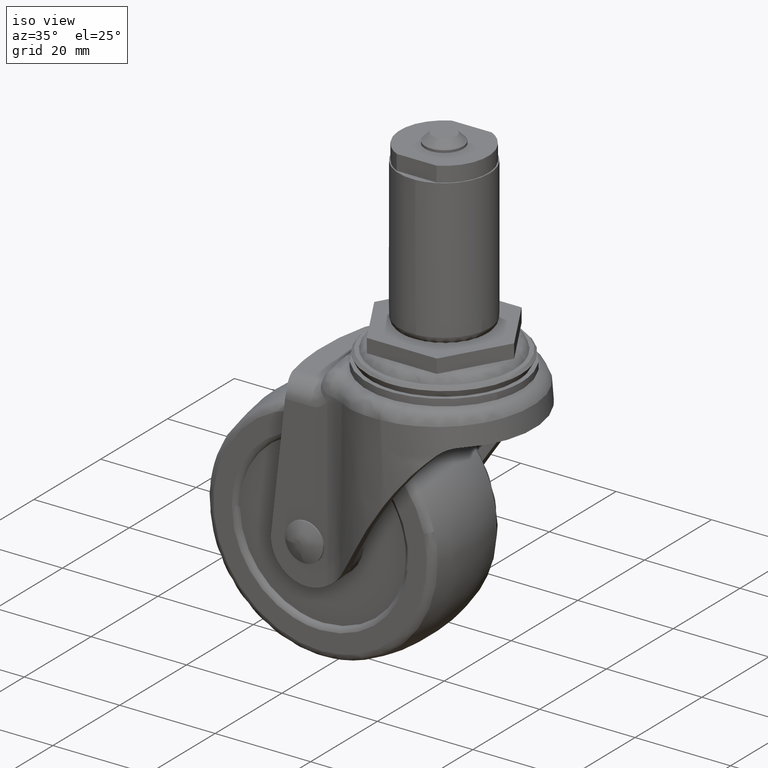
[diagram: clean part render]
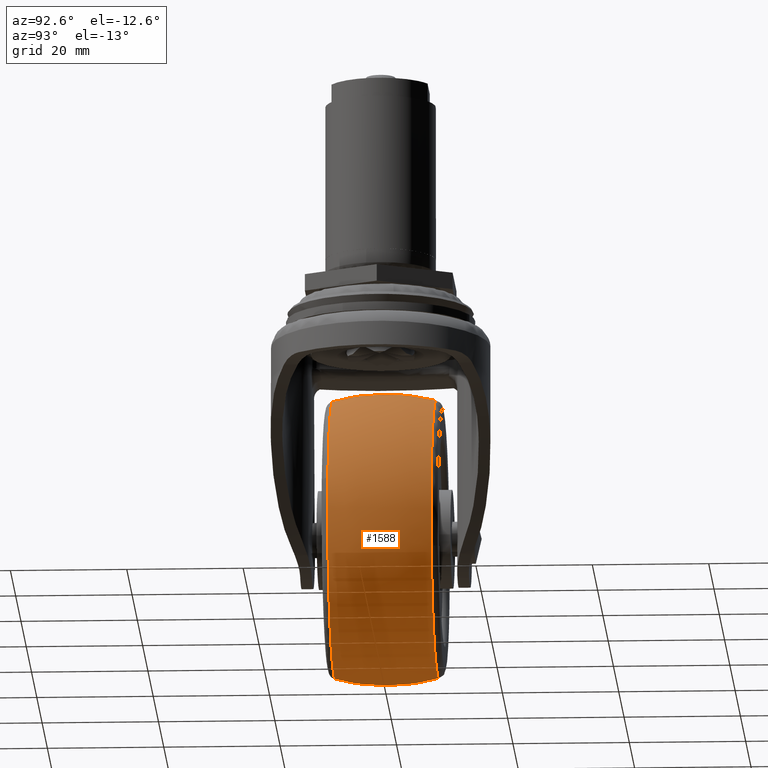
[diagram: tour spotlight — one face highlighted and labeled with its STEP entity id]
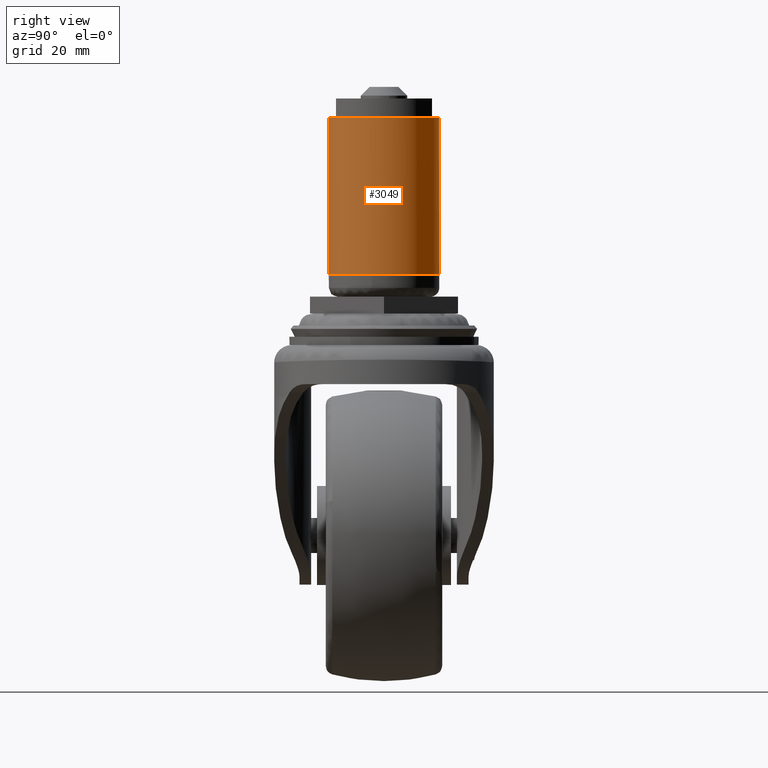
[diagram: tour spotlight — one face highlighted and labeled with its STEP entity id]
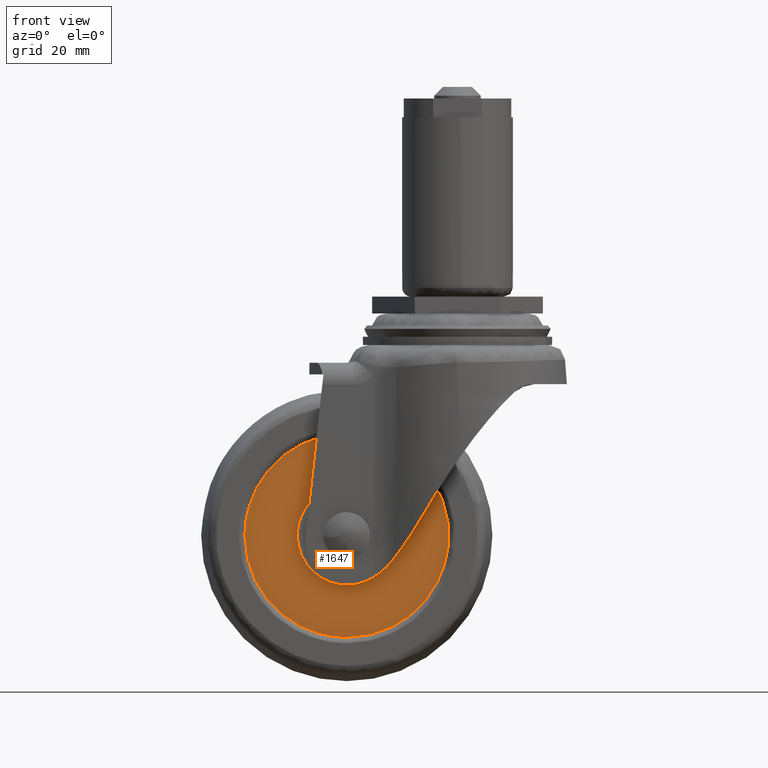
[diagram: tour spotlight — one face highlighted and labeled with its STEP entity id]
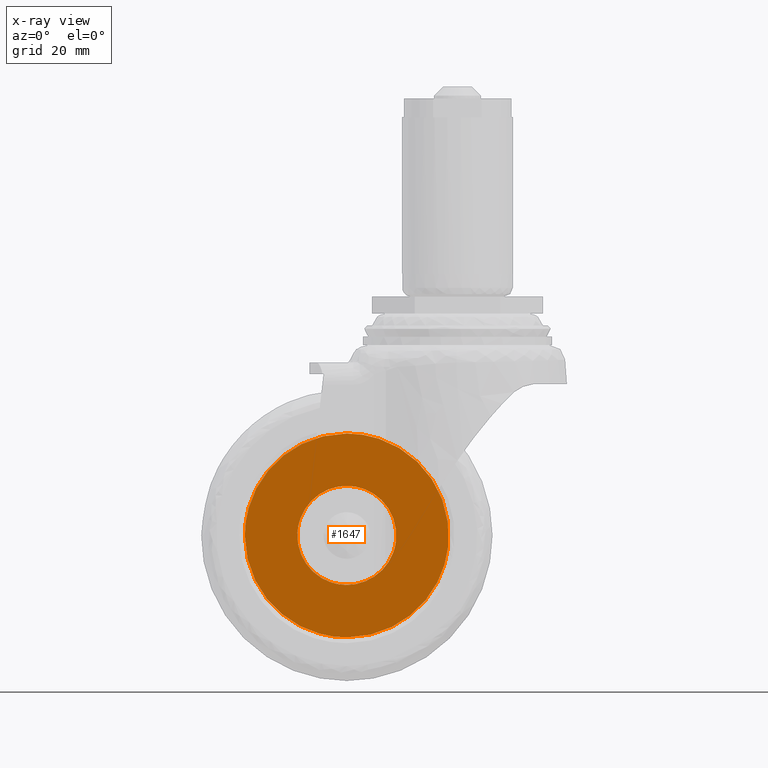
[diagram: x-ray of the same camera — body ghosted, this tour face saturated]
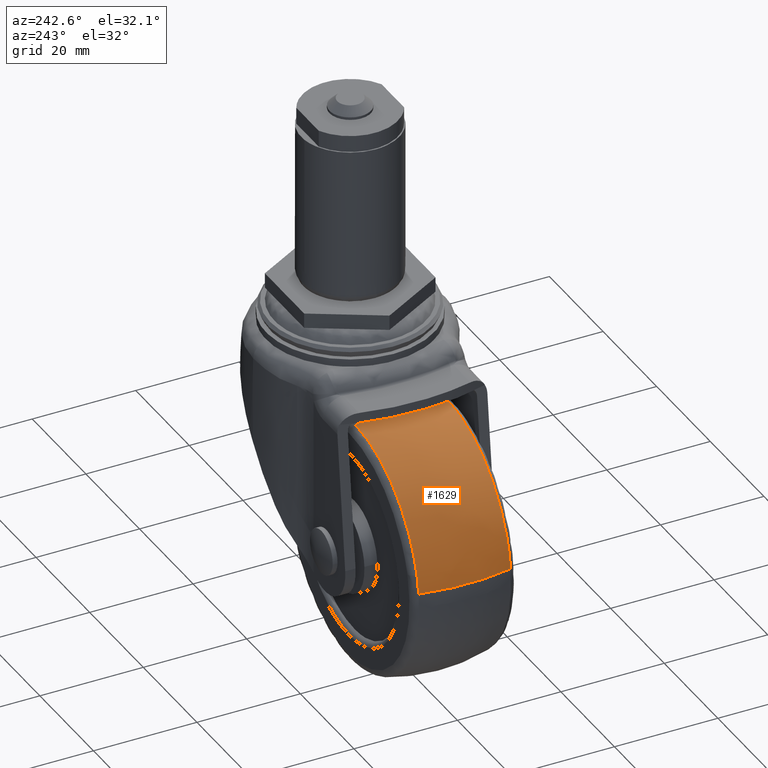
[diagram: tour spotlight — one face highlighted and labeled with its STEP entity id]
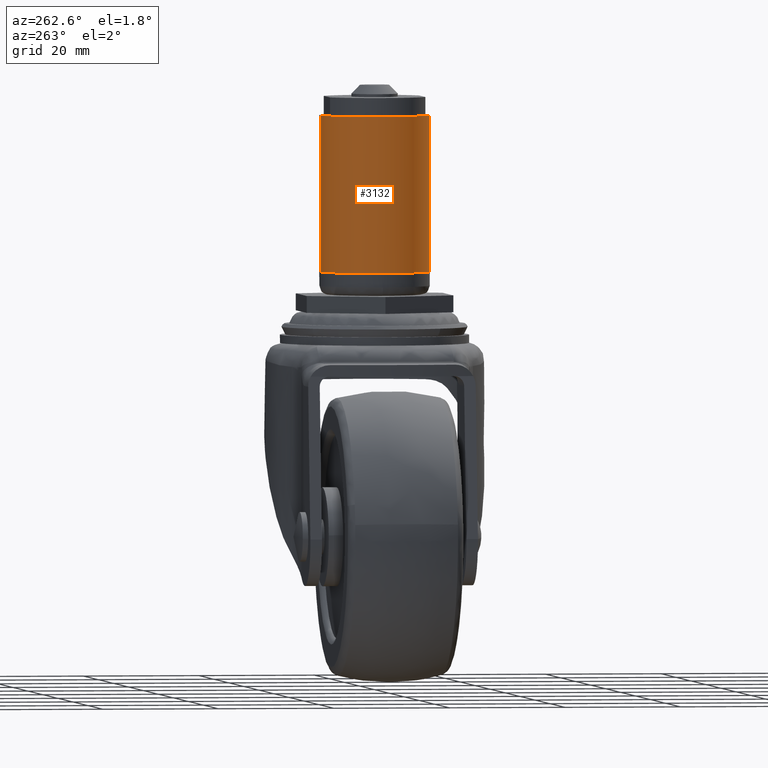
[diagram: tour spotlight — one face highlighted and labeled with its STEP entity id]
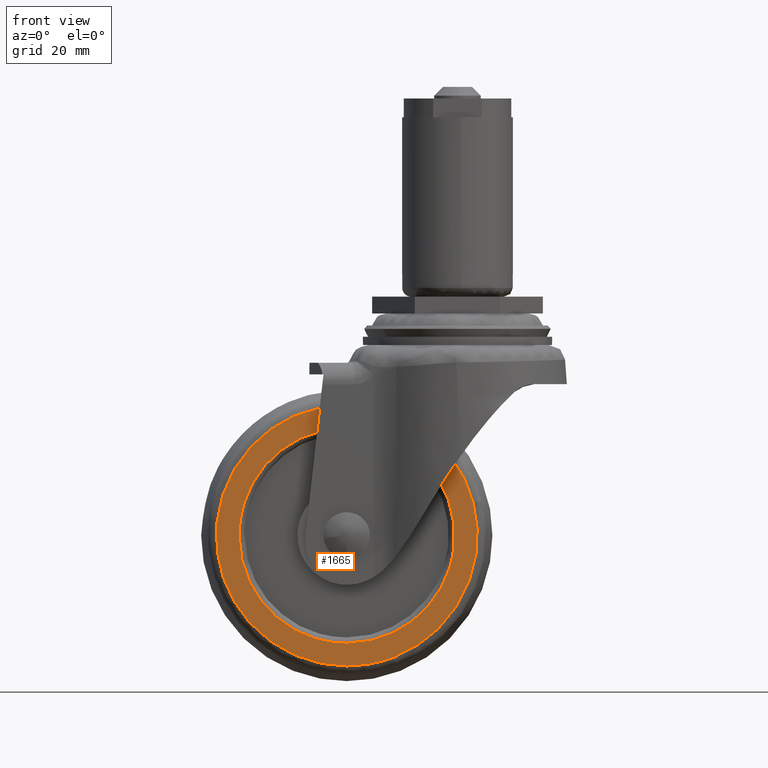
[diagram: tour spotlight — one face highlighted and labeled with its STEP entity id]
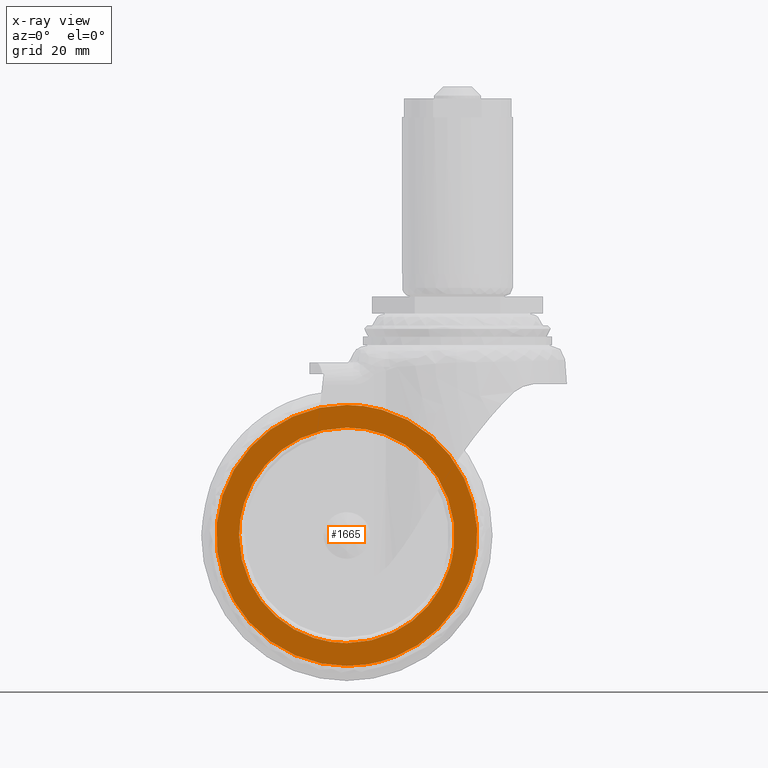
[diagram: x-ray of the same camera — body ghosted, this tour face saturated]
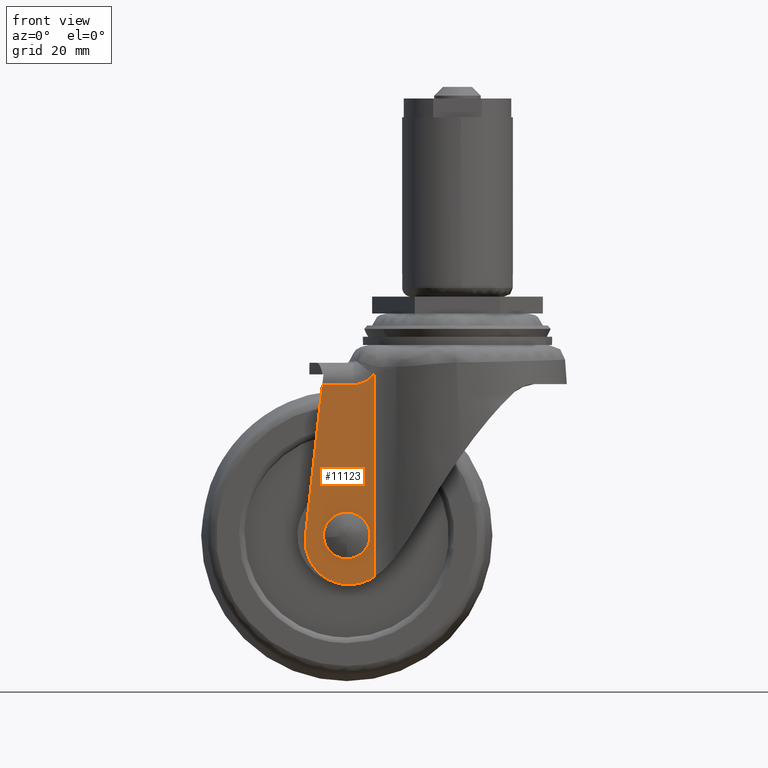
[diagram: tour spotlight — one face highlighted and labeled with its STEP entity id]
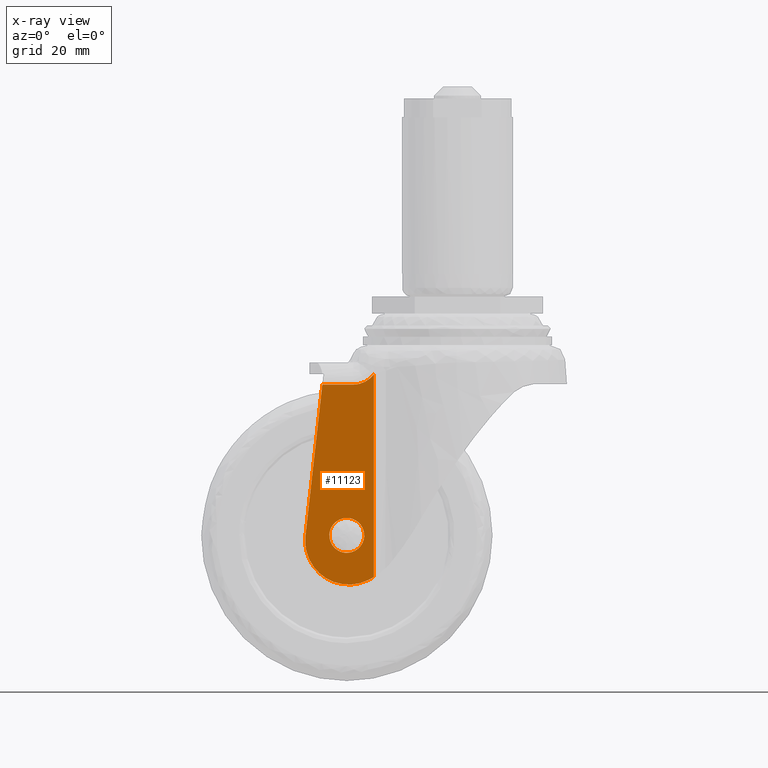
[diagram: x-ray of the same camera — body ghosted, this tour face saturated]
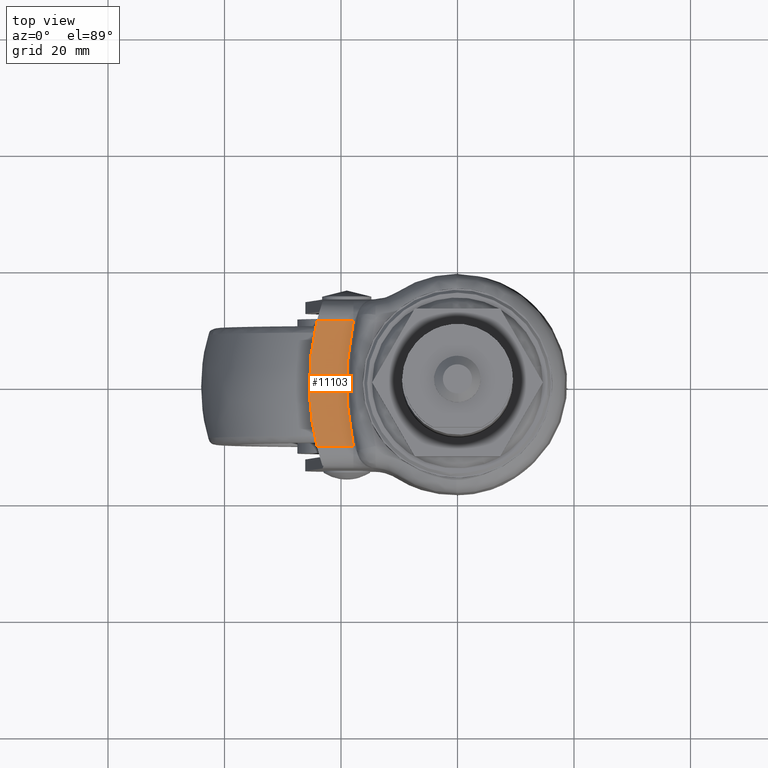
[diagram: tour spotlight — one face highlighted and labeled with its STEP entity id]
A machine part: a face-by-face anatomy tour. The part has 186 B-rep faces; the first image is the clean iso view, then the 8 largest visible faces are spotlighted one at a time (largest first), each with its STEP entity span.

Face 1 — auxiliary view, entity #1588. In plain terms, the highlighted face is a freeform B-spline surface patch.
Definition (entity closure, byte-faithful):
#848=CARTESIAN_POINT('',(-10.439454703460500,-8.880695614179441,-63.266084002827291));
#849=VERTEX_POINT('',#848);
#863=CARTESIAN_POINT('',(4.105180196009338,-8.880688197294333,-35.068019027231912));
#864=VERTEX_POINT('',#863);
#865=CARTESIAN_POINT('',(-10.439454703460498,-8.880695614179441,-63.266084002827291));
#866=CARTESIAN_POINT('',(4.854615588697799,-8.880694006044562,-57.385927077585023));
#867=CARTESIAN_POINT('',(4.854615588697799,-8.880689599022036,-41.000419317010540));
#868=CARTESIAN_POINT('',(4.854615588697800,-8.880688788505221,-37.986881378004860));
#869=CARTESIAN_POINT('',(4.105180196009337,-8.880688197294333,-35.068019027231912));
#877=(BOUNDED_CURVE()B_SPLINE_CURVE(2,(#865,#866,#867,#868,#869),.UNSPECIFIED.,.F.,.U.)B_SPLINE_CURVE_WITH_KNOTS((3,2,3),(0.060939058643649,0.250000000000000,0.292443224404333),.UNSPECIFIED.)CURVE()GEOMETRIC_REPRESENTATION_ITEM()RATIONAL_B_SPLINE_CURVE((0.892016636151792,0.778501329336948,1.0,0.950274669549572,0.917433365970242))REPRESENTATION_ITEM(''));
#878=EDGE_CURVE('',#849,#864,#877,.T.);
#977=CARTESIAN_POINT('',(-19.0,-8.880683183118592,-17.145802045323169));
#978=VERTEX_POINT('',#977);
#979=CARTESIAN_POINT('',(4.105180196009337,-8.880688197294333,-35.068019027231912));
#980=CARTESIAN_POINT('',(-0.496461813767672,-8.880683183118592,-17.145802045323169));
#981=CARTESIAN_POINT('',(-19.0,-8.880683183118592,-17.145802045323169));
#989=(BOUNDED_CURVE()B_SPLINE_CURVE(2,(#979,#980,#981),.UNSPECIFIED.,.F.,.U.)B_SPLINE_CURVE_WITH_KNOTS((3,3),(0.292443224404333,0.500000000000000),.UNSPECIFIED.)CURVE()GEOMETRIC_REPRESENTATION_ITEM()RATIONAL_B_SPLINE_CURVE((0.917433365970242,0.756832111636975,1.0))REPRESENTATION_ITEM(''));
#990=EDGE_CURVE('',#864,#978,#989,.T.);
#992=CARTESIAN_POINT('',(-42.695068976662327,-8.880700371804336,-38.246090491632941));
#993=VERTEX_POINT('',#992);
#1007=CARTESIAN_POINT('',(-19.0,-8.880696014925480,-64.855036588697899));
#1008=VERTEX_POINT('',#1007);
#1009=CARTESIAN_POINT('',(-42.695068976662327,-8.880700371804336,-38.246090491632941));
#1010=CARTESIAN_POINT('',(-42.854614482730177,-8.880700259435926,-39.618634947196185));
#1011=CARTESIAN_POINT('',(-42.854614515609953,-8.880700133249130,-41.000421124736548));
#1012=CARTESIAN_POINT('',(-42.854615083233348,-8.880697954809705,-64.855036647453417));
#1013=CARTESIAN_POINT('',(-19.0,-8.880696014925480,-64.855036588697899));
#1021=(BOUNDED_CURVE()B_SPLINE_CURVE(2,(#1009,#1010,#1011,#1012,#1013),.UNSPECIFIED.,.F.,.U.)B_SPLINE_CURVE_WITH_KNOTS((3,2,3),(0.730000172506486,0.750000000000000,1.0),.UNSPECIFIED.)CURVE()GEOMETRIC_REPRESENTATION_ITEM()RATIONAL_B_SPLINE_CURVE((0.956886457725523,0.976568744598843,1.0,0.707106781186547,1.0))REPRESENTATION_ITEM(''));
#1022=EDGE_CURVE('',#993,#1008,#1021,.T.);
#1024=CARTESIAN_POINT('',(-19.0,-8.880696014925480,-64.855036588697899));
#1025=CARTESIAN_POINT('',(-14.572261864627983,-8.880696014925480,-64.855036588697899));
#1026=CARTESIAN_POINT('',(-10.439454703460498,-8.880695614179441,-63.266084002827299));
#1034=(BOUNDED_CURVE()B_SPLINE_CURVE(2,(#1024,#1025,#1026),.UNSPECIFIED.,.F.,.U.)B_SPLINE_CURVE_WITH_KNOTS((3,3),(0.0,0.060939058643649),.UNSPECIFIED.)CURVE()GEOMETRIC_REPRESENTATION_ITEM()RATIONAL_B_SPLINE_CURVE((1.0,0.928605451849600,0.892016636151792))REPRESENTATION_ITEM(''));
#1035=EDGE_CURVE('',#1008,#849,#1034,.T.);
#1064=CARTESIAN_POINT('',(4.028813119945495,8.880489886675726,-47.222679916615441));
#1065=VERTEX_POINT('',#1064);
#1066=CARTESIAN_POINT('',(-19.0,8.880481941160131,-17.145801194909591));
#1067=VERTEX_POINT('',#1066);
#1068=CARTESIAN_POINT('',(4.028813119945495,8.880489886675726,-47.222679916615441));
#1069=CARTESIAN_POINT('',(4.854617014718945,8.880488968119135,-44.166348988326291));
#1070=CARTESIAN_POINT('',(4.854616915024484,8.880488046656900,-41.000419250170658));
#1071=CARTESIAN_POINT('',(4.854616163847578,8.880481103631842,-17.145801350312215));
#1072=CARTESIAN_POINT('',(-19.0,8.880481941160131,-17.145801194909591));
#1080=(BOUNDED_CURVE()B_SPLINE_CURVE(2,(#1068,#1069,#1070,#1071,#1072),.UNSPECIFIED.,.F.,.U.)B_SPLINE_CURVE_WITH_KNOTS((3,2,3),(0.205522304480087,0.250000000000000,0.500000000000000),.UNSPECIFIED.)CURVE()GEOMETRIC_REPRESENTATION_ITEM()RATIONAL_B_SPLINE_CURVE((0.914323733400086,0.947891138375072,1.0,0.707106781186547,1.0))REPRESENTATION_ITEM(''));
#1081=EDGE_CURVE('',#1065,#1067,#1080,.T.);
#1184=CARTESIAN_POINT('',(-19.0,8.880498014925280,-64.855036588697899));
#1185=VERTEX_POINT('',#1184);
#1186=CARTESIAN_POINT('',(-19.0,8.880498014925280,-64.855036588697899));
#1187=CARTESIAN_POINT('',(-0.735354514622848,8.880496921067909,-64.855036791662172));
#1188=CARTESIAN_POINT('',(4.028813119945495,8.880489886675726,-47.222679916615441));
#1196=(BOUNDED_CURVE()B_SPLINE_CURVE(2,(#1186,#1187,#1188),.UNSPECIFIED.,.F.,.U.)B_SPLINE_CURVE_WITH_KNOTS((3,3),(0.0,0.205522304480087),.UNSPECIFIED.)CURVE()GEOMETRIC_REPRESENTATION_ITEM()RATIONAL_B_SPLINE_CURVE((1.0,0.759215642811476,0.914323733400086))REPRESENTATION_ITEM(''));
#1197=EDGE_CURVE('',#1185,#1065,#1196,.T.);
#1199=CARTESIAN_POINT('',(-42.695069877122449,8.880498927539524,-38.246090413273862));
#1200=VERTEX_POINT('',#1199);
#1201=CARTESIAN_POINT('',(-42.695069877122449,8.880498927539524,-38.246090413273855));
#1202=CARTESIAN_POINT('',(-42.854615588697804,8.880498014925280,-39.618634831749134));
#1203=CARTESIAN_POINT('',(-42.854615588697797,8.880498014925280,-41.000421000000102));
#1204=CARTESIAN_POINT('',(-42.854615588697797,8.880498014925280,-64.855036588697899));
#1205=CARTESIAN_POINT('',(-19.0,8.880498014925280,-64.855036588697899));
#1213=(BOUNDED_CURVE()B_SPLINE_CURVE(2,(#1201,#1202,#1203,#1204,#1205),.UNSPECIFIED.,.F.,.U.)B_SPLINE_CURVE_WITH_KNOTS((3,2,3),(0.730000172691811,0.750000000000000,1.0),.UNSPECIFIED.)CURVE()GEOMETRIC_REPRESENTATION_ITEM()RATIONAL_B_SPLINE_CURVE((0.956886458090290,0.976568744815966,1.0,0.707106781186547,1.0))REPRESENTATION_ITEM(''));
#1214=EDGE_CURVE('',#1200,#1185,#1213,.T.);
#1496=CARTESIAN_POINT('',(-42.449537619602694,-9.774579793571219,-38.274607568132716));
#1497=CARTESIAN_POINT('',(-43.832791040827104,-4.986538732047997,-38.113815879340613));
#1498=CARTESIAN_POINT('',(-43.832791040827097,-0.000099000000085,-38.113815879340628));
#1499=CARTESIAN_POINT('',(-43.832791040827104,4.986339364717679,-38.113815879340613));
#1500=CARTESIAN_POINT('',(-42.449538363114115,9.774379219954669,-38.274607481705722));
#1501=CARTESIAN_POINT('',(-42.607432588879924,-9.774579793571217,-39.632941186540435));
#1502=CARTESIAN_POINT('',(-43.999999999999979,-4.986538732047997,-39.552275581908546));
#1503=CARTESIAN_POINT('',(-44.0,-0.000099000000085,-39.552275581908560));
#1504=CARTESIAN_POINT('',(-44.0,4.986339364717679,-39.552275581908567));
#1505=CARTESIAN_POINT('',(-42.607433337397694,9.774379219954671,-39.632941143181945));
#1506=CARTESIAN_POINT('',(-42.607432588879938,-9.774579793571219,-41.000421000000109));
#1507=CARTESIAN_POINT('',(-44.0,-4.986538732048000,-41.000421000000102));
#1508=CARTESIAN_POINT('',(-44.0,-0.000099000000085,-41.000421000000102));
#1509=CARTESIAN_POINT('',(-44.0,4.986339364717679,-41.000421000000095));
#1510=CARTESIAN_POINT('',(-42.607433337397694,9.774379219954671,-41.000421000000095));
#1511=CARTESIAN_POINT('',(-42.607432588879952,-9.774579793571219,-64.607853588880047));
#1512=CARTESIAN_POINT('',(-44.0,-4.986538732047999,-66.000421000000117));
#1513=CARTESIAN_POINT('',(-44.000000000000014,-0.000099000000085,-66.000421000000102));
#1514=CARTESIAN_POINT('',(-44.0,4.986339364717680,-66.000421000000088));
#1515=CARTESIAN_POINT('',(-42.607433337397694,9.774379219954671,-64.607854337397796));
#1516=CARTESIAN_POINT('',(-19.000000000000004,-9.774579793571219,-64.607853588880019));
#1517=CARTESIAN_POINT('',(-19.0,-4.986538732048000,-66.000421000000102));
#1518=CARTESIAN_POINT('',(-19.0,-0.000099000000085,-66.000421000000102));
#1519=CARTESIAN_POINT('',(-19.0,4.986339364717679,-66.000421000000102));
#1520=CARTESIAN_POINT('',(-18.999999999999993,9.774379219954671,-64.607854337397796));
#1521=CARTESIAN_POINT('',(4.607432588879934,-9.774579793571219,-64.607853588880047));
#1522=CARTESIAN_POINT('',(6.000000000000002,-4.986538732047999,-66.000421000000117));
#1523=CARTESIAN_POINT('',(6.000000000000003,-0.000099000000085,-66.000421000000102));
#1524=CARTESIAN_POINT('',(6.000000000000001,4.986339364717680,-66.000421000000088));
#1525=CARTESIAN_POINT('',(4.607433337397697,9.774379219954671,-64.607854337397796));
#1526=CARTESIAN_POINT('',(4.607432588879934,-9.774579793571219,-41.000421000000109));
#1527=CARTESIAN_POINT('',(6.000000000000001,-4.986538732048000,-41.000421000000102));
#1528=CARTESIAN_POINT('',(6.000000000000002,-0.000099000000085,-41.000421000000102));
#1529=CARTESIAN_POINT('',(6.000000000000001,4.986339364717679,-41.000421000000095));
#1530=CARTESIAN_POINT('',(4.607433337397696,9.774379219954671,-41.000421000000095));
#1531=CARTESIAN_POINT('',(4.607432588879936,-9.774579793571219,-17.392988411120164));
#1532=CARTESIAN_POINT('',(6.000000000000002,-4.986538732047999,-16.000421000000092));
#1533=CARTESIAN_POINT('',(6.000000000000003,-0.000099000000085,-16.000421000000099));
#1534=CARTESIAN_POINT('',(6.000000000000001,4.986339364717680,-16.000421000000092));
#1535=CARTESIAN_POINT('',(4.607433337397697,9.774379219954671,-17.392987662602398));
#1536=CARTESIAN_POINT('',(-19.000000000000004,-9.774579793571219,-17.392988411120168));
#1537=CARTESIAN_POINT('',(-19.0,-4.986538732048000,-16.000421000000102));
#1538=CARTESIAN_POINT('',(-19.0,-0.000099000000085,-16.000421000000099));
#1539=CARTESIAN_POINT('',(-19.0,4.986339364717679,-16.000421000000099));
#1540=CARTESIAN_POINT('',(-18.999999999999993,9.774379219954671,-17.392987662602408));
#1548=(BOUNDED_SURFACE()B_SPLINE_SURFACE(2,2,((#1496,#1501,#1506,#1511,#1516,#1521,#1526,#1531,#1536),(#1497,#1502,#1507,#1512,#1517,#1522,#1527,#1532,#1537),(#1498,#1503,#1508,#1513,#1518,#1523,#1528,#1533,#1538),(#1499,#1504,#1509,#1514,#1519,#1524,#1529,#1534,#1539),(#1500,#1505,#1510,#1515,#1520,#1525,#1530,#1535,#1540)),.UNSPECIFIED.,.F.,.F.,.U.)B_SPLINE_SURFACE_WITH_KNOTS((3,2,3),(3,2,2,2,3),(0.0,10.236366531138330,20.472730382019179),(0.0,3.313707807691297,44.735064045000797,86.156420282310307,127.577776519619800),.UNSPECIFIED.)GEOMETRIC_REPRESENTATION_ITEM()RATIONAL_B_SPLINE_SURFACE(((0.890190323625529,0.908500862590132,0.930299122396093,0.657820817978171,0.930299122396093,0.657820817978171,0.930299122396093,0.657820817978171,0.930299122396093),(0.913709472566026,0.932503782564374,0.954877960244764,0.675200680894651,0.954877960244764,0.675200680894651,0.954877960244764,0.675200680894651,0.954877960244764),(0.956886126402807,0.976568547383107,1.0,0.707106781186548,1.0,0.707106781186548,1.0,0.707106781186548,1.0),(0.913709483871263,0.932503794102150,0.954877972059375,0.675200689248843,0.954877972059375,0.675200689248843,0.954877972059375,0.675200689248843,0.954877972059375),(0.890190335941887,0.908500875159828,0.930299135267383,0.657820827079548,0.930299135267383,0.657820827079548,0.930299135267383,0.657820827079548,0.930299135267383)))REPRESENTATION_ITEM('')SURFACE());
#1549=ORIENTED_EDGE('',*,*,#1022,.F.);
#1550=CARTESIAN_POINT('',(-42.695068976662327,-8.880700371804336,-38.246090491632941));
#1551=CARTESIAN_POINT('',(-43.832793779269402,-4.514263381208458,-38.113839437719285));
#1552=CARTESIAN_POINT('',(-43.832793780036454,-0.000099000000056,-38.113839444317534));
#1553=CARTESIAN_POINT('',(-43.832793780803492,4.514063571195416,-38.113839450915776));
#1554=CARTESIAN_POINT('',(-42.695069877122449,8.880498927539524,-38.246090413273855));
#1562=(BOUNDED_CURVE()B_SPLINE_CURVE(2,(#1550,#1551,#1552,#1553,#1554),.UNSPECIFIED.,.F.,.U.)B_SPLINE_CURVE_WITH_KNOTS((3,2,3),(0.396517671841704,0.500000000000000,0.603482288367892),.UNSPECIFIED.)CURVE()GEOMETRIC_REPRESENTATION_ITEM()RATIONAL_B_SPLINE_CURVE((0.894624803274663,0.917631048784288,0.956886118190660,0.917631063878411,0.894624820967112))REPRESENTATION_ITEM(''));
#1563=EDGE_CURVE('',#993,#1200,#1562,.T.);
#1564=ORIENTED_EDGE('',*,*,#1563,.T.);
#1565=ORIENTED_EDGE('',*,*,#1214,.T.);
#1566=ORIENTED_EDGE('',*,*,#1197,.T.);
#1567=ORIENTED_EDGE('',*,*,#1081,.T.);
#1568=CARTESIAN_POINT('',(-19.000000000000007,-8.880683183118592,-17.145802045323176));
#1569=CARTESIAN_POINT('',(-18.999999999999996,-4.514254348296391,-16.000421000000099));
#1570=CARTESIAN_POINT('',(-19.0,-0.000099000000085,-16.000421000000099));
#1571=CARTESIAN_POINT('',(-19.000000000000004,4.514054644598879,-16.000421000000102));
#1572=CARTESIAN_POINT('',(-19.000000000000004,8.880481941160131,-17.145801194909591));
#1580=(BOUNDED_CURVE()B_SPLINE_CURVE(2,(#1568,#1569,#1570,#1571,#1572),.UNSPECIFIED.,.F.,.U.)B_SPLINE_CURVE_WITH_KNOTS((3,2,3),(0.396517870416734,0.500000000000000,0.603482092130044),.UNSPECIFIED.)CURVE()GEOMETRIC_REPRESENTATION_ITEM()RATIONAL_B_SPLINE_CURVE((0.934933504167607,0.958976315642464,1.0,0.958976330490141,0.934933521571209))REPRESENTATION_ITEM(''));
#1581=EDGE_CURVE('',#978,#1067,#1580,.T.);
#1582=ORIENTED_EDGE('',*,*,#1581,.F.);
#1583=ORIENTED_EDGE('',*,*,#990,.F.);
#1584=ORIENTED_EDGE('',*,*,#878,.F.);
#1585=ORIENTED_EDGE('',*,*,#1035,.F.);
#1586=EDGE_LOOP('',(#1549,#1564,#1565,#1566,#1567,#1582,#1583,#1584,#1585));
#1587=FACE_OUTER_BOUND('',#1586,.T.);
#1588=ADVANCED_FACE('',(#1587),#1548,.T.);

Face 2 — right view, entity #3049. In plain terms, the highlighted face is a freeform B-spline surface patch.
Definition (entity closure, byte-faithful):
#2947=CARTESIAN_POINT('',(-1.121336914628424,9.433688808397832,31.472500000000007));
#2948=CARTESIAN_POINT('',(-0.851348793918913,9.465780989135574,31.472500000000007));
#2949=CARTESIAN_POINT('',(-0.579967169386549,9.482379400352668,31.472500000000000));
#2950=CARTESIAN_POINT('',(8.902412230966119,10.062346569739217,31.472500000000000));
#2951=CARTESIAN_POINT('',(9.482379400352668,0.579967169386549,31.472500000000000));
#2952=CARTESIAN_POINT('',(10.062346569739217,-8.902412230966119,31.472500000000000));
#2953=CARTESIAN_POINT('',(0.579967169386549,-9.482379400352668,31.472500000000000));
#2954=CARTESIAN_POINT('',(-1.121336914628424,9.433688808397832,3.210687499999995));
#2955=CARTESIAN_POINT('',(-0.851348793918913,9.465780989135574,3.210687499999996));
#2956=CARTESIAN_POINT('',(-0.579967169386549,9.482379400352668,3.210687499999995));
#2957=CARTESIAN_POINT('',(8.902412230966119,10.062346569739217,3.210687499999995));
#2958=CARTESIAN_POINT('',(9.482379400352668,0.579967169386549,3.210687499999995));
#2959=CARTESIAN_POINT('',(10.062346569739217,-8.902412230966119,3.210687499999995));
#2960=CARTESIAN_POINT('',(0.579967169386549,-9.482379400352668,3.210687499999995));
#2968=(BOUNDED_SURFACE()B_SPLINE_SURFACE(2,1,((#2947,#2954),(#2948,#2955),(#2949,#2956),(#2950,#2957),(#2951,#2958),(#2952,#2959),(#2953,#2960)),.UNSPECIFIED.,.F.,.F.,.U.)B_SPLINE_SURFACE_WITH_KNOTS((3,2,2,3),(2,2),(0.0,0.629611175949926,16.369890574698051,32.110169973446183),(0.0,28.261812500000008),.UNSPECIFIED.)GEOMETRIC_REPRESENTATION_ITEM()RATIONAL_B_SPLINE_SURFACE(((0.977505800795127,0.977505800795127),(0.988284271247462,0.988284271247462),(1.0,1.0),(0.707106781186548,0.707106781186548),(1.0,1.0),(0.707106781186548,0.707106781186548),(1.0,1.0)))REPRESENTATION_ITEM('')SURFACE());
#2969=CARTESIAN_POINT('',(-1.121328561830136,9.433689801247024,3.899999999999959));
#2970=VERTEX_POINT('',#2969);
#2971=CARTESIAN_POINT('',(9.500098999999890,0.0,3.900000000000000));
#2972=VERTEX_POINT('',#2971);
#2973=CARTESIAN_POINT('',(-1.121328561830137,9.433689801247024,3.899999999999960));
#2974=CARTESIAN_POINT('',(-0.562630779330037,9.500098999999890,3.900000000000000));
#2975=CARTESIAN_POINT('',(0.0,9.500098999999890,3.900000000000000));
#2976=CARTESIAN_POINT('',(9.500098999999890,9.500098999999890,3.899999999999999));
#2977=CARTESIAN_POINT('',(9.500098999999890,0.0,3.900000000000000));
#2985=(BOUNDED_CURVE()B_SPLINE_CURVE(2,(#2973,#2974,#2975,#2976,#2977),.UNSPECIFIED.,.F.,.U.)B_SPLINE_CURVE_WITH_KNOTS((3,2,3),(0.229562623154895,0.250000000000000,0.500000000000000),.UNSPECIFIED.)CURVE()GEOMETRIC_REPRESENTATION_ITEM()RATIONAL_B_SPLINE_CURVE((0.956027047487151,0.976056123646935,1.0,0.707106781186548,1.0))REPRESENTATION_ITEM(''));
#2986=EDGE_CURVE('',#2970,#2972,#2985,.T.);
#2987=ORIENTED_EDGE('',*,*,#2986,.F.);
#2988=CARTESIAN_POINT('',(-1.121328665072494,9.433689788975288,30.800000000000001));
#2989=VERTEX_POINT('',#2988);
#2990=CARTESIAN_POINT('',(-1.121328665072494,9.433689788975288,30.800000000000001));
#2991=CARTESIAN_POINT('',(-1.121328561830136,9.433689801247024,3.899999999999959));
#2992=QUASI_UNIFORM_CURVE('',1,(#2990,#2991),.UNSPECIFIED.,.F.,.U.);
#2993=EDGE_CURVE('',#2989,#2970,#2992,.T.);
#2994=ORIENTED_EDGE('',*,*,#2993,.F.);
#2995=CARTESIAN_POINT('',(9.500098999999890,0.0,30.800000000000001));
#2996=VERTEX_POINT('',#2995);
#2997=CARTESIAN_POINT('',(-1.121328665072494,9.433689788975288,30.800000000000001));
#2998=CARTESIAN_POINT('',(-0.562630831496936,9.500098999999890,30.799999999999997));
#2999=CARTESIAN_POINT('',(0.0,9.500098999999890,30.800000000000001));
#3000=CARTESIAN_POINT('',(9.500098999999890,9.500098999999890,30.800000000000008));
#3001=CARTESIAN_POINT('',(9.500098999999890,0.0,30.800000000000001));
#3009=(BOUNDED_CURVE()B_SPLINE_CURVE(2,(#2997,#2998,#2999,#3000,#3001),.UNSPECIFIED.,.F.,.U.)B_SPLINE_CURVE_WITH_KNOTS((3,2,3),(0.229562621305322,0.250000000000000,0.500000000000000),.UNSPECIFIED.)CURVE()GEOMETRIC_REPRESENTATION_ITEM()RATIONAL_B_SPLINE_CURVE((0.956027043861907,0.976056121480025,1.0,0.707106781186548,1.0))REPRESENTATION_ITEM(''));
#3010=EDGE_CURVE('',#2989,#2996,#3009,.T.);
#3011=ORIENTED_EDGE('',*,*,#3010,.T.);
#3012=CARTESIAN_POINT('',(0.579967169429625,-9.482379400350034,30.800000000000001));
#3013=VERTEX_POINT('',#3012);
#3014=CARTESIAN_POINT('',(9.500098999999890,0.0,30.800000000000001));
#3015=CARTESIAN_POINT('',(9.500098999999890,-8.936800765423216,30.800000000000008));
#3016=CARTESIAN_POINT('',(0.579967169429625,-9.482379400350034,30.800000000000001));
#3024=(BOUNDED_CURVE()B_SPLINE_CURVE(2,(#3014,#3015,#3016),.UNSPECIFIED.,.F.,.U.)B_SPLINE_CURVE_WITH_KNOTS((3,3),(0.500000000000000,0.739332962240399),.UNSPECIFIED.)CURVE()GEOMETRIC_REPRESENTATION_ITEM()RATIONAL_B_SPLINE_CURVE((1.0,0.719603993285004,0.976072041669840))REPRESENTATION_ITEM(''));
#3025=EDGE_CURVE('',#2996,#3013,#3024,.T.);
#3026=ORIENTED_EDGE('',*,*,#3025,.T.);
#3027=CARTESIAN_POINT('',(0.579967169429628,-9.482379400350034,3.900000000000000));
#3028=VERTEX_POINT('',#3027);
#3029=CARTESIAN_POINT('',(0.579967169429625,-9.482379400350034,30.800000000000001));
#3030=CARTESIAN_POINT('',(0.579967169429628,-9.482379400350034,3.900000000000000));
#3031=QUASI_UNIFORM_CURVE('',1,(#3029,#3030),.UNSPECIFIED.,.F.,.U.);
#3032=EDGE_CURVE('',#3013,#3028,#3031,.T.);
#3033=ORIENTED_EDGE('',*,*,#3032,.T.);
#3034=CARTESIAN_POINT('',(9.500098999999890,0.0,3.900000000000000));
#3035=CARTESIAN_POINT('',(9.500098999999890,-8.936800765423216,3.900000000000000));
#3036=CARTESIAN_POINT('',(0.579967169429628,-9.482379400350034,3.899999999999999));
#3044=(BOUNDED_CURVE()B_SPLINE_CURVE(2,(#3034,#3035,#3036),.UNSPECIFIED.,.F.,.U.)B_SPLINE_CURVE_WITH_KNOTS((3,3),(0.500000000000000,0.739332962240399),.UNSPECIFIED.)CURVE()GEOMETRIC_REPRESENTATION_ITEM()RATIONAL_B_SPLINE_CURVE((1.0,0.719603993285004,0.976072041669840))REPRESENTATION_ITEM(''));
#3045=EDGE_CURVE('',#2972,#3028,#3044,.T.);
#3046=ORIENTED_EDGE('',*,*,#3045,.F.);
#3047=EDGE_LOOP('',(#2987,#2994,#3011,#3026,#3033,#3046));
#3048=FACE_OUTER_BOUND('',#3047,.T.);
#3049=ADVANCED_FACE('',(#3048),#2968,.T.);

Face 3 — front view, entity #1647. An x-ray twin of the same camera follows (body ghosted, this face saturated) — the face is partly hidden behind the body. In plain terms, the highlighted face is a freeform B-spline surface patch.
Definition (entity closure, byte-faithful):
#66=CARTESIAN_POINT('',(-10.559419025921731,-9.000098999999999,-42.003711994691052));
#67=VERTEX_POINT('',#66);
#68=CARTESIAN_POINT('',(-19.0,-9.000098999999999,-32.500421000000102));
#69=VERTEX_POINT('',#68);
#70=CARTESIAN_POINT('',(-10.559419025921731,-9.000098999999999,-42.003711994691052));
#71=CARTESIAN_POINT('',(-10.499999999999996,-9.000098999999999,-41.503826017150971));
#72=CARTESIAN_POINT('',(-10.500000000000000,-9.000098999999999,-41.000421000000102));
#73=CARTESIAN_POINT('',(-10.499999999999998,-9.000098999999999,-32.500421000000088));
#74=CARTESIAN_POINT('',(-19.0,-9.000098999999999,-32.500421000000102));
#82=(BOUNDED_CURVE()B_SPLINE_CURVE(2,(#70,#71,#72,#73,#74),.UNSPECIFIED.,.F.,.U.)B_SPLINE_CURVE_WITH_KNOTS((3,2,3),(0.229562473511300,0.250000000000000,0.500000000000000),.UNSPECIFIED.)CURVE()GEOMETRIC_REPRESENTATION_ITEM()RATIONAL_B_SPLINE_CURVE((0.956026754179370,0.976055948328557,1.0,0.707106781186548,1.0))REPRESENTATION_ITEM(''));
#83=EDGE_CURVE('',#67,#69,#82,.T.);
#85=CARTESIAN_POINT('',(-27.484146240961021,-9.000098999999695,-40.481515843028582));
#86=VERTEX_POINT('',#85);
#87=CARTESIAN_POINT('',(-19.0,-9.000098999999999,-32.500421000000102));
#88=CARTESIAN_POINT('',(-26.996008583419940,-9.000098999999999,-32.500421000000095));
#89=CARTESIAN_POINT('',(-27.484146240961017,-9.000098999999695,-40.481515843028568));
#97=(BOUNDED_CURVE()B_SPLINE_CURVE(2,(#87,#88,#89),.UNSPECIFIED.,.F.,.U.)B_SPLINE_CURVE_WITH_KNOTS((3,3),(0.500000000000000,0.739333113331209),.UNSPECIFIED.)CURVE()GEOMETRIC_REPRESENTATION_ITEM()RATIONAL_B_SPLINE_CURVE((1.0,0.719603816271110,0.976072365486419))REPRESENTATION_ITEM(''));
#98=EDGE_CURVE('',#69,#86,#97,.T.);
#165=CARTESIAN_POINT('',(-19.0,-9.000098999999999,-49.500421000000102));
#166=VERTEX_POINT('',#165);
#167=CARTESIAN_POINT('',(-19.0,-9.000098999999999,-49.500421000000102));
#168=CARTESIAN_POINT('',(-11.450516529608818,-9.000098999999999,-49.500421000000109));
#169=CARTESIAN_POINT('',(-10.559419025921732,-9.000098999999999,-42.003711994691045));
#177=(BOUNDED_CURVE()B_SPLINE_CURVE(2,(#167,#168,#169),.UNSPECIFIED.,.F.,.U.)B_SPLINE_CURVE_WITH_KNOTS((3,3),(0.0,0.229562473511300),.UNSPECIFIED.)CURVE()GEOMETRIC_REPRESENTATION_ITEM()RATIONAL_B_SPLINE_CURVE((1.0,0.731050832857990,0.956026754179370))REPRESENTATION_ITEM(''));
#178=EDGE_CURVE('',#166,#67,#177,.T.);
#212=CARTESIAN_POINT('',(-27.484146240961017,-9.000098999999695,-40.481515843028568));
#213=CARTESIAN_POINT('',(-27.499999999999996,-9.000098999999999,-40.740726236914426));
#214=CARTESIAN_POINT('',(-27.500000000000000,-9.000098999999999,-41.000421000000102));
#215=CARTESIAN_POINT('',(-27.500000000000004,-9.000098999999999,-49.500421000000109));
#216=CARTESIAN_POINT('',(-19.0,-9.000098999999999,-49.500421000000102));
#224=(BOUNDED_CURVE()B_SPLINE_CURVE(2,(#212,#213,#214,#215,#216),.UNSPECIFIED.,.F.,.U.)B_SPLINE_CURVE_WITH_KNOTS((3,2,3),(0.739333113331209,0.750000000000000,1.0),.UNSPECIFIED.)CURVE()GEOMETRIC_REPRESENTATION_ITEM()RATIONAL_B_SPLINE_CURVE((0.976072365486419,0.987502964915438,1.0,0.707106781186548,1.0))REPRESENTATION_ITEM(''));
#225=EDGE_CURVE('',#86,#166,#224,.T.);
#631=CARTESIAN_POINT('',(-1.617243990277288,-9.000099000157857,-43.021022035842250));
#632=VERTEX_POINT('',#631);
#633=CARTESIAN_POINT('',(-19.0,-9.000098999999999,-23.500620000000200));
#634=VERTEX_POINT('',#633);
#635=CARTESIAN_POINT('',(-1.617243990277289,-9.000099000157857,-43.021022035842250));
#636=CARTESIAN_POINT('',(-1.500199000000098,-9.000098999999999,-42.014111481972954));
#637=CARTESIAN_POINT('',(-1.500199000000098,-9.000098999999999,-41.000421000000102));
#638=CARTESIAN_POINT('',(-1.500199000000098,-9.000098999999999,-23.500620000000197));
#639=CARTESIAN_POINT('',(-19.0,-9.000098999999999,-23.500620000000200));
#647=(BOUNDED_CURVE()B_SPLINE_CURVE(2,(#635,#636,#637,#638,#639),.UNSPECIFIED.,.F.,.U.)B_SPLINE_CURVE_WITH_KNOTS((3,2,3),(0.230000000000000,0.250000000000000,0.500000000000000),.UNSPECIFIED.)CURVE()GEOMETRIC_REPRESENTATION_ITEM()RATIONAL_B_SPLINE_CURVE((0.956886118190660,0.976568542494924,1.0,0.707106781186547,1.0))REPRESENTATION_ITEM(''));
#648=EDGE_CURVE('',#632,#634,#647,.T.);
#697=CARTESIAN_POINT('',(-36.499800999999898,-9.000099000157860,-41.000421000000102));
#698=VERTEX_POINT('',#697);
#712=CARTESIAN_POINT('',(-19.0,-9.000098999999999,-23.500620000000200));
#713=CARTESIAN_POINT('',(-36.499800999999813,-9.000099000000001,-23.500620000000193));
#714=CARTESIAN_POINT('',(-36.499800999999898,-9.000099000157860,-41.000421000000102));
#722=(BOUNDED_CURVE()B_SPLINE_CURVE(2,(#712,#713,#714),.UNSPECIFIED.,.F.,.U.)B_SPLINE_CURVE_WITH_KNOTS((3,3),(0.500000000000000,0.749999999999999),.UNSPECIFIED.)CURVE()GEOMETRIC_REPRESENTATION_ITEM()RATIONAL_B_SPLINE_CURVE((1.0,0.707106781186548,0.999999999999998))REPRESENTATION_ITEM(''));
#723=EDGE_CURVE('',#634,#698,#722,.T.);
#751=CARTESIAN_POINT('',(-19.0,-9.000098999999999,-58.500222000000008));
#752=VERTEX_POINT('',#751);
#753=CARTESIAN_POINT('',(-19.0,-9.000098999999999,-58.500222000000008));
#754=CARTESIAN_POINT('',(-3.416572443377035,-9.000098999999999,-58.500222000000008));
#755=CARTESIAN_POINT('',(-1.617243990277289,-9.000099000157857,-43.021022035842250));
#763=(BOUNDED_CURVE()B_SPLINE_CURVE(2,(#753,#754,#755),.UNSPECIFIED.,.F.,.U.)B_SPLINE_CURVE_WITH_KNOTS((3,3),(0.0,0.230000000000000),.UNSPECIFIED.)CURVE()GEOMETRIC_REPRESENTATION_ITEM()RATIONAL_B_SPLINE_CURVE((1.0,0.730538238691624,0.956886118190660))REPRESENTATION_ITEM(''));
#764=EDGE_CURVE('',#752,#632,#763,.T.);
#766=CARTESIAN_POINT('',(-36.499800999999898,-9.000099000157860,-41.000421000000109));
#767=CARTESIAN_POINT('',(-36.499800999999906,-9.000099000000001,-58.500222000000008));
#768=CARTESIAN_POINT('',(-19.0,-9.000098999999999,-58.500222000000008));
#776=(BOUNDED_CURVE()B_SPLINE_CURVE(2,(#766,#767,#768),.UNSPECIFIED.,.F.,.U.)B_SPLINE_CURVE_WITH_KNOTS((3,3),(0.750000000000000,1.0),.UNSPECIFIED.)CURVE()GEOMETRIC_REPRESENTATION_ITEM()RATIONAL_B_SPLINE_CURVE((1.000000000000000,0.707106781186548,1.0))REPRESENTATION_ITEM(''));
#777=EDGE_CURVE('',#698,#752,#776,.T.);
#1630=CARTESIAN_POINT('',(-38.248026944267188,-9.000098999999999,-60.248451394961528));
#1631=CARTESIAN_POINT('',(-38.248026944267188,-9.000098999999999,-21.752389040434540));
#1632=CARTESIAN_POINT('',(0.247931866641422,-9.000098999999999,-60.248451394961528));
#1633=CARTESIAN_POINT('',(0.247931866641422,-9.000098999999999,-21.752389040434540));
#1634=B_SPLINE_SURFACE_WITH_KNOTS('',1,1,((#1630,#1632),(#1631,#1633)),.UNSPECIFIED.,.F.,.F.,.U.,(2,2),(2,2),(0.0,38.496062354526977),(0.0,38.495958810908611),.UNSPECIFIED.);
#1635=ORIENTED_EDGE('',*,*,#764,.T.);
#1636=ORIENTED_EDGE('',*,*,#648,.T.);
#1637=ORIENTED_EDGE('',*,*,#723,.T.);
#1638=ORIENTED_EDGE('',*,*,#777,.T.);
#1639=EDGE_LOOP('',(#1635,#1636,#1637,#1638));
#1640=FACE_OUTER_BOUND('',#1639,.T.);
#1641=ORIENTED_EDGE('',*,*,#98,.F.);
#1642=ORIENTED_EDGE('',*,*,#83,.F.);
#1643=ORIENTED_EDGE('',*,*,#178,.F.);
#1644=ORIENTED_EDGE('',*,*,#225,.F.);
#1645=EDGE_LOOP('',(#1641,#1642,#1643,#1644));
#1646=FACE_BOUND('',#1645,.T.);
#1647=ADVANCED_FACE('',(#1640,#1646),#1634,.F.);

Face 4 — auxiliary view, entity #1629. In plain terms, the highlighted face is a freeform B-spline surface patch.
Definition (entity closure, byte-faithful):
#977=CARTESIAN_POINT('',(-19.0,-8.880683183118592,-17.145802045323169));
#978=VERTEX_POINT('',#977);
#992=CARTESIAN_POINT('',(-42.695068976662327,-8.880700371804336,-38.246090491632941));
#993=VERTEX_POINT('',#992);
#994=CARTESIAN_POINT('',(-19.0,-8.880683183118592,-17.145802045323169));
#995=CARTESIAN_POINT('',(-40.242358449594533,-8.880691777461465,-17.145803794293656));
#996=CARTESIAN_POINT('',(-42.695068976662327,-8.880700371804336,-38.246090491632941));
#1004=(BOUNDED_CURVE()B_SPLINE_CURVE(2,(#994,#995,#996),.UNSPECIFIED.,.F.,.U.)B_SPLINE_CURVE_WITH_KNOTS((3,3),(0.500000000000000,0.730000172506486),.UNSPECIFIED.)CURVE()GEOMETRIC_REPRESENTATION_ITEM()RATIONAL_B_SPLINE_CURVE((1.0,0.730538036587704,0.956886457725523))REPRESENTATION_ITEM(''));
#1005=EDGE_CURVE('',#978,#993,#1004,.T.);
#1066=CARTESIAN_POINT('',(-19.0,8.880481941160131,-17.145801194909591));
#1067=VERTEX_POINT('',#1066);
#1130=CARTESIAN_POINT('',(-42.028807899499128,8.880497459937100,-34.778147135494770));
#1131=VERTEX_POINT('',#1130);
#1145=CARTESIAN_POINT('',(-19.0,8.880481941160131,-17.145801194909591));
#1146=CARTESIAN_POINT('',(-37.264633610855505,8.880489243785915,-17.145803019465628));
#1147=CARTESIAN_POINT('',(-42.028807899499128,8.880497459937100,-34.778147135494770));
#1155=(BOUNDED_CURVE()B_SPLINE_CURVE(2,(#1145,#1146,#1147),.UNSPECIFIED.,.F.,.U.)B_SPLINE_CURVE_WITH_KNOTS((3,3),(0.500000000000000,0.705522210326192),.UNSPECIFIED.)CURVE()GEOMETRIC_REPRESENTATION_ITEM()RATIONAL_B_SPLINE_CURVE((1.0,0.759215753119625,0.914323591283908))REPRESENTATION_ITEM(''));
#1156=EDGE_CURVE('',#1067,#1131,#1155,.T.);
#1199=CARTESIAN_POINT('',(-42.695069877122449,8.880498927539524,-38.246090413273862));
#1200=VERTEX_POINT('',#1199);
#1216=CARTESIAN_POINT('',(-42.028807899499121,8.880497459937100,-34.778147135494777));
#1217=CARTESIAN_POINT('',(-42.490637772213731,8.880498219636849,-36.487393125349229));
#1218=CARTESIAN_POINT('',(-42.695069877122449,8.880498927539524,-38.246090413273855));
#1226=(BOUNDED_CURVE()B_SPLINE_CURVE(2,(#1216,#1217,#1218),.UNSPECIFIED.,.F.,.U.)B_SPLINE_CURVE_WITH_KNOTS((3,3),(0.705522210326193,0.730000172691811),.UNSPECIFIED.)CURVE()GEOMETRIC_REPRESENTATION_ITEM()RATIONAL_B_SPLINE_CURVE((0.914323591283909,0.932797136401840,0.956886458090290))REPRESENTATION_ITEM(''));
#1227=EDGE_CURVE('',#1131,#1200,#1226,.T.);
#1550=CARTESIAN_POINT('',(-42.695068976662327,-8.880700371804336,-38.246090491632941));
#1551=CARTESIAN_POINT('',(-43.832793779269402,-4.514263381208458,-38.113839437719285));
#1552=CARTESIAN_POINT('',(-43.832793780036454,-0.000099000000056,-38.113839444317534));
#1553=CARTESIAN_POINT('',(-43.832793780803492,4.514063571195416,-38.113839450915776));
#1554=CARTESIAN_POINT('',(-42.695069877122449,8.880498927539524,-38.246090413273855));
#1562=(BOUNDED_CURVE()B_SPLINE_CURVE(2,(#1550,#1551,#1552,#1553,#1554),.UNSPECIFIED.,.F.,.U.)B_SPLINE_CURVE_WITH_KNOTS((3,2,3),(0.396517671841704,0.500000000000000,0.603482288367892),.UNSPECIFIED.)CURVE()GEOMETRIC_REPRESENTATION_ITEM()RATIONAL_B_SPLINE_CURVE((0.894624803274663,0.917631048784288,0.956886118190660,0.917631063878411,0.894624820967112))REPRESENTATION_ITEM(''));
#1563=EDGE_CURVE('',#993,#1200,#1562,.T.);
#1568=CARTESIAN_POINT('',(-19.000000000000007,-8.880683183118592,-17.145802045323176));
#1569=CARTESIAN_POINT('',(-18.999999999999996,-4.514254348296391,-16.000421000000099));
#1570=CARTESIAN_POINT('',(-19.0,-0.000099000000085,-16.000421000000099));
#1571=CARTESIAN_POINT('',(-19.000000000000004,4.514054644598879,-16.000421000000102));
#1572=CARTESIAN_POINT('',(-19.000000000000004,8.880481941160131,-17.145801194909591));
#1580=(BOUNDED_CURVE()B_SPLINE_CURVE(2,(#1568,#1569,#1570,#1571,#1572),.UNSPECIFIED.,.F.,.U.)B_SPLINE_CURVE_WITH_KNOTS((3,2,3),(0.396517870416734,0.500000000000000,0.603482092130044),.UNSPECIFIED.)CURVE()GEOMETRIC_REPRESENTATION_ITEM()RATIONAL_B_SPLINE_CURVE((0.934933504167607,0.958976315642464,1.0,0.958976330490141,0.934933521571209))REPRESENTATION_ITEM(''));
#1581=EDGE_CURVE('',#978,#1067,#1580,.T.);
#1589=CARTESIAN_POINT('',(-18.846837227364542,-9.774579793571219,-17.392988411120168));
#1590=CARTESIAN_POINT('',(-18.837802382725425,-4.986538732048000,-16.000421000000099));
#1591=CARTESIAN_POINT('',(-18.837802382725432,-0.000099000000085,-16.000421000000102));
#1592=CARTESIAN_POINT('',(-18.837802382725425,4.986339364717678,-16.000421000000095));
#1593=CARTESIAN_POINT('',(-18.846837222508231,9.774379219954671,-17.392987662602405));
#1594=CARTESIAN_POINT('',(-18.923315573657742,-9.774579793571217,-17.392988411120161));
#1595=CARTESIAN_POINT('',(-18.918792073160063,-4.986538732048000,-16.000421000000095));
#1596=CARTESIAN_POINT('',(-18.918792073160066,-0.000099000000085,-16.000421000000106));
#1597=CARTESIAN_POINT('',(-18.918792073160063,4.986339364717680,-16.000421000000099));
#1598=CARTESIAN_POINT('',(-18.923315571226318,9.774379219954673,-17.392987662602412));
#1599=CARTESIAN_POINT('',(-40.022222798229109,-9.774579793571219,-17.392988411120168));
#1600=CARTESIAN_POINT('',(-41.262292520673597,-4.986538732047998,-16.000421000000099));
#1601=CARTESIAN_POINT('',(-41.262292520673597,-0.000099000000085,-16.000421000000099));
#1602=CARTESIAN_POINT('',(-41.262292520673590,4.986339364717681,-16.000421000000099));
#1603=CARTESIAN_POINT('',(-40.022223464777973,9.774379219954675,-17.392987662602412));
#1604=CARTESIAN_POINT('',(-42.458793713355050,-9.774579793571219,-38.354235568141810));
#1605=CARTESIAN_POINT('',(-43.842593137812351,-4.986538732047998,-38.198141016889238));
#1606=CARTESIAN_POINT('',(-43.842593137812365,-0.000099000000085,-38.198141016889238));
#1607=CARTESIAN_POINT('',(-43.842593137812365,4.986339364717679,-38.198141016889252));
#1608=CARTESIAN_POINT('',(-42.458794457159954,9.774379219954669,-38.354235484239545));
#1609=CARTESIAN_POINT('',(-42.468028027615823,-9.774579793571219,-38.433676204301321));
#1610=CARTESIAN_POINT('',(-43.852372170566120,-4.986538732047998,-38.282267738272878));
#1611=CARTESIAN_POINT('',(-43.852372170566127,-0.000099000000085,-38.282267738272878));
#1612=CARTESIAN_POINT('',(-43.852372170566127,4.986339364717679,-38.282267738272878));
#1613=CARTESIAN_POINT('',(-42.468028771713499,9.774379219954669,-38.433676122917873));
#1621=(BOUNDED_SURFACE()B_SPLINE_SURFACE(2,2,((#1589,#1594,#1599,#1604,#1609),(#1590,#1595,#1600,#1605,#1610),(#1591,#1596,#1601,#1606,#1611),(#1592,#1597,#1602,#1607,#1612),(#1593,#1598,#1603,#1608,#1613)),.UNSPECIFIED.,.F.,.F.,.U.)B_SPLINE_SURFACE_WITH_KNOTS((3,2,3),(3,1,1,3),(0.0,10.236366531138319,20.472730382019169),(0.0,0.190329383194393,38.256178291783343,38.446536256105311),.UNSPECIFIED.)GEOMETRIC_REPRESENTATION_ITEM()RATIONAL_B_SPLINE_SURFACE(((0.932805924622897,0.931552523509495,0.679619082331605,0.891243331025041,0.892296346064307),(0.957450993089192,0.956164476666978,0.697574863242660,0.914790300800261,0.915871136876094),(1.002694619576064,1.001347309788032,0.730538238691624,0.958018028362255,0.959149938533850),(0.957451004935639,0.956164488497507,0.697574871873685,0.914790312118871,0.915871148208077),(0.932805937528870,0.931552536398127,0.679619091734574,0.891243343355969,0.892296358409804)))REPRESENTATION_ITEM('')SURFACE());
#1622=ORIENTED_EDGE('',*,*,#1005,.F.);
#1623=ORIENTED_EDGE('',*,*,#1581,.T.);
#1624=ORIENTED_EDGE('',*,*,#1156,.T.);
#1625=ORIENTED_EDGE('',*,*,#1227,.T.);
#1626=ORIENTED_EDGE('',*,*,#1563,.F.);
#1627=EDGE_LOOP('',(#1622,#1623,#1624,#1625,#1626));
#1628=FACE_OUTER_BOUND('',#1627,.T.);
#1629=ADVANCED_FACE('',(#1628),#1621,.T.);

Face 5 — auxiliary view, entity #3132. In plain terms, the highlighted face is a freeform B-spline surface patch.
Definition (entity closure, byte-faithful):
#2969=CARTESIAN_POINT('',(-1.121328561830136,9.433689801247024,3.899999999999959));
#2970=VERTEX_POINT('',#2969);
#2988=CARTESIAN_POINT('',(-1.121328665072494,9.433689788975288,30.800000000000001));
#2989=VERTEX_POINT('',#2988);
#2990=CARTESIAN_POINT('',(-1.121328665072494,9.433689788975288,30.800000000000001));
#2991=CARTESIAN_POINT('',(-1.121328561830136,9.433689801247024,3.899999999999959));
#2992=QUASI_UNIFORM_CURVE('',1,(#2990,#2991),.UNSPECIFIED.,.F.,.U.);
#2993=EDGE_CURVE('',#2989,#2970,#2992,.T.);
#3012=CARTESIAN_POINT('',(0.579967169429625,-9.482379400350034,30.800000000000001));
#3013=VERTEX_POINT('',#3012);
#3027=CARTESIAN_POINT('',(0.579967169429628,-9.482379400350034,3.900000000000000));
#3028=VERTEX_POINT('',#3027);
#3029=CARTESIAN_POINT('',(0.579967169429625,-9.482379400350034,30.800000000000001));
#3030=CARTESIAN_POINT('',(0.579967169429628,-9.482379400350034,3.900000000000000));
#3031=QUASI_UNIFORM_CURVE('',1,(#3029,#3030),.UNSPECIFIED.,.F.,.U.);
#3032=EDGE_CURVE('',#3013,#3028,#3031,.T.);
#3050=CARTESIAN_POINT('',(0.579967169386549,-9.482379400352668,31.472500000000000));
#3051=CARTESIAN_POINT('',(-8.902412230966119,-10.062346569739217,31.472500000000000));
#3052=CARTESIAN_POINT('',(-9.482379400352668,-0.579967169386549,31.472500000000000));
#3053=CARTESIAN_POINT('',(-10.030073391792373,8.374750435780754,31.472500000000007));
#3054=CARTESIAN_POINT('',(-1.121336914628424,9.433688808397832,31.472500000000007));
#3055=CARTESIAN_POINT('',(0.579967169386549,-9.482379400352668,3.210687499999995));
#3056=CARTESIAN_POINT('',(-8.902412230966119,-10.062346569739217,3.210687499999995));
#3057=CARTESIAN_POINT('',(-9.482379400352668,-0.579967169386549,3.210687499999995));
#3058=CARTESIAN_POINT('',(-10.030073391792373,8.374750435780754,3.210687499999995));
#3059=CARTESIAN_POINT('',(-1.121336914628424,9.433688808397832,3.210687499999995));
#3067=(BOUNDED_SURFACE()B_SPLINE_SURFACE(2,1,((#3050,#3055),(#3051,#3056),(#3052,#3057),(#3053,#3058),(#3054,#3059)),.UNSPECIFIED.,.F.,.F.,.U.)B_SPLINE_SURFACE_WITH_KNOTS((3,2,3),(2,2),(0.0,15.740279398748131,30.850947621546329),(0.0,28.261812500000008),.UNSPECIFIED.)GEOMETRIC_REPRESENTATION_ITEM()RATIONAL_B_SPLINE_SURFACE(((1.0,1.0),(0.707106781186548,0.707106781186548),(1.0,1.0),(0.718822509939086,0.718822509939086),(0.977505800795127,0.977505800795127)))REPRESENTATION_ITEM('')SURFACE());
#3068=CARTESIAN_POINT('',(-9.500098999999890,0.0,3.900000000000000));
#3069=VERTEX_POINT('',#3068);
#3070=CARTESIAN_POINT('',(-9.500098999999890,0.0,3.900000000000000));
#3071=CARTESIAN_POINT('',(-9.500098999999890,8.437753449379656,3.900000000000000));
#3072=CARTESIAN_POINT('',(-1.121328561830137,9.433689801247024,3.899999999999960));
#3080=(BOUNDED_CURVE()B_SPLINE_CURVE(2,(#3070,#3071,#3072),.UNSPECIFIED.,.F.,.U.)B_SPLINE_CURVE_WITH_KNOTS((3,3),(0.0,0.229562623154895),.UNSPECIFIED.)CURVE()GEOMETRIC_REPRESENTATION_ITEM()RATIONAL_B_SPLINE_CURVE((1.0,0.731050657539613,0.956027047487151))REPRESENTATION_ITEM(''));
#3081=EDGE_CURVE('',#3069,#2970,#3080,.T.);
#3082=ORIENTED_EDGE('',*,*,#3081,.F.);
#3083=CARTESIAN_POINT('',(0.579967169429628,-9.482379400350034,3.900000000000000));
#3084=CARTESIAN_POINT('',(0.290254276103359,-9.500098999999890,3.900000000000000));
#3085=CARTESIAN_POINT('',(0.0,-9.500098999999890,3.900000000000000));
#3086=CARTESIAN_POINT('',(-9.500098999999890,-9.500098999999890,3.899999999999999));
#3087=CARTESIAN_POINT('',(-9.500098999999890,0.0,3.900000000000000));
#3095=(BOUNDED_CURVE()B_SPLINE_CURVE(2,(#3083,#3084,#3085,#3086,#3087),.UNSPECIFIED.,.F.,.U.)B_SPLINE_CURVE_WITH_KNOTS((3,2,3),(0.739332962240400,0.750000000000000,1.0),.UNSPECIFIED.)CURVE()GEOMETRIC_REPRESENTATION_ITEM()RATIONAL_B_SPLINE_CURVE((0.976072041669842,0.987502787901545,1.0,0.707106781186548,1.0))REPRESENTATION_ITEM(''));
#3096=EDGE_CURVE('',#3028,#3069,#3095,.T.);
#3097=ORIENTED_EDGE('',*,*,#3096,.F.);
#3098=ORIENTED_EDGE('',*,*,#3032,.F.);
#3099=CARTESIAN_POINT('',(-9.500098999999890,0.0,30.800000000000001));
#3100=VERTEX_POINT('',#3099);
#3101=CARTESIAN_POINT('',(0.579967169429625,-9.482379400350034,30.800000000000001));
#3102=CARTESIAN_POINT('',(0.290254276103356,-9.500098999999890,30.800000000000001));
#3103=CARTESIAN_POINT('',(0.0,-9.500098999999890,30.800000000000001));
#3104=CARTESIAN_POINT('',(-9.500098999999890,-9.500098999999890,30.800000000000008));
#3105=CARTESIAN_POINT('',(-9.500098999999890,0.0,30.800000000000001));
#3113=(BOUNDED_CURVE()B_SPLINE_CURVE(2,(#3101,#3102,#3103,#3104,#3105),.UNSPECIFIED.,.F.,.U.)B_SPLINE_CURVE_WITH_KNOTS((3,2,3),(0.739332962240401,0.750000000000000,1.0),.UNSPECIFIED.)CURVE()GEOMETRIC_REPRESENTATION_ITEM()RATIONAL_B_SPLINE_CURVE((0.976072041669842,0.987502787901545,1.0,0.707106781186548,1.0))REPRESENTATION_ITEM(''));
#3114=EDGE_CURVE('',#3013,#3100,#3113,.T.);
#3115=ORIENTED_EDGE('',*,*,#3114,.T.);
#3116=CARTESIAN_POINT('',(-9.500098999999890,0.0,30.800000000000001));
#3117=CARTESIAN_POINT('',(-9.500098999999890,8.437753356386786,30.800000000000008));
#3118=CARTESIAN_POINT('',(-1.121328665072494,9.433689788975288,30.800000000000001));
#3126=(BOUNDED_CURVE()B_SPLINE_CURVE(2,(#3116,#3117,#3118),.UNSPECIFIED.,.F.,.U.)B_SPLINE_CURVE_WITH_KNOTS((3,3),(0.0,0.229562621305322),.UNSPECIFIED.)CURVE()GEOMETRIC_REPRESENTATION_ITEM()RATIONAL_B_SPLINE_CURVE((1.0,0.731050659706522,0.956027043861907))REPRESENTATION_ITEM(''));
#3127=EDGE_CURVE('',#3100,#2989,#3126,.T.);
#3128=ORIENTED_EDGE('',*,*,#3127,.T.);
#3129=ORIENTED_EDGE('',*,*,#2993,.T.);
#3130=EDGE_LOOP('',(#3082,#3097,#3098,#3115,#3128,#3129));
#3131=FACE_OUTER_BOUND('',#3130,.T.);
#3132=ADVANCED_FACE('',(#3131),#3067,.T.);

Face 6 — front view, entity #1665. An x-ray twin of the same camera follows (body ghosted, this face saturated) — the face is partly hidden behind the body. In plain terms, the highlighted face is a freeform B-spline surface patch.
Definition (entity closure, byte-faithful):
#650=CARTESIAN_POINT('',(-0.623932354463298,-10.000099000000040,-43.136486265041647));
#651=VERTEX_POINT('',#650);
#665=CARTESIAN_POINT('',(-19.0,-10.000099000000080,-22.500620000000200));
#666=VERTEX_POINT('',#665);
#667=CARTESIAN_POINT('',(-0.623932354463298,-10.000099000000040,-43.136486265041654));
#668=CARTESIAN_POINT('',(-0.500199000000100,-10.000099000000082,-42.072037311287801));
#669=CARTESIAN_POINT('',(-0.500199000000100,-10.000099000000080,-41.000421000000102));
#670=CARTESIAN_POINT('',(-0.500199000000100,-10.000099000000080,-22.500620000000204));
#671=CARTESIAN_POINT('',(-19.0,-10.000099000000080,-22.500620000000200));
#679=(BOUNDED_CURVE()B_SPLINE_CURVE(2,(#667,#668,#669,#670,#671),.UNSPECIFIED.,.F.,.U.)B_SPLINE_CURVE_WITH_KNOTS((3,2,3),(0.229999999996046,0.250000000000000,0.500000000000000),.UNSPECIFIED.)CURVE()GEOMETRIC_REPRESENTATION_ITEM()RATIONAL_B_SPLINE_CURVE((0.956886118182876,0.976568542490291,1.0,0.707106781186548,1.0))REPRESENTATION_ITEM(''));
#680=EDGE_CURVE('',#651,#666,#679,.T.);
#682=CARTESIAN_POINT('',(-37.499800998076878,-10.000099000000040,-41.000421000000102));
#683=VERTEX_POINT('',#682);
#684=CARTESIAN_POINT('',(-19.0,-10.000099000000080,-22.500620000000200));
#685=CARTESIAN_POINT('',(-37.499800999999806,-10.000099000000082,-22.500620000000200));
#686=CARTESIAN_POINT('',(-37.499800998076878,-10.000099000000040,-41.000421000000102));
#694=(BOUNDED_CURVE()B_SPLINE_CURVE(2,(#684,#685,#686),.UNSPECIFIED.,.F.,.U.)B_SPLINE_CURVE_WITH_KNOTS((3,3),(0.500000000000000,0.749999999999999),.UNSPECIFIED.)CURVE()GEOMETRIC_REPRESENTATION_ITEM()RATIONAL_B_SPLINE_CURVE((1.0,0.707106781186549,0.999999999999998))REPRESENTATION_ITEM(''));
#695=EDGE_CURVE('',#666,#683,#694,.T.);
#780=CARTESIAN_POINT('',(-19.0,-10.000099000000080,-59.500222000000001));
#781=VERTEX_POINT('',#780);
#782=CARTESIAN_POINT('',(-37.499800998076878,-10.000099000000041,-41.000421000000109));
#783=CARTESIAN_POINT('',(-37.499800999999898,-10.000099000000080,-59.500222000000001));
#784=CARTESIAN_POINT('',(-19.0,-10.000099000000080,-59.500222000000001));
#792=(BOUNDED_CURVE()B_SPLINE_CURVE(2,(#782,#783,#784),.UNSPECIFIED.,.F.,.U.)B_SPLINE_CURVE_WITH_KNOTS((3,3),(0.750000000000000,1.0),.UNSPECIFIED.)CURVE()GEOMETRIC_REPRESENTATION_ITEM()RATIONAL_B_SPLINE_CURVE((1.000000000000000,0.707106781186548,1.0))REPRESENTATION_ITEM(''));
#793=EDGE_CURVE('',#683,#781,#792,.T.);
#795=CARTESIAN_POINT('',(-19.0,-10.000099000000080,-59.500222000000001));
#796=CARTESIAN_POINT('',(-2.526080742937811,-10.000099000000080,-59.500222000000008));
#797=CARTESIAN_POINT('',(-0.623932354463298,-10.000099000000040,-43.136486265041654));
#805=(BOUNDED_CURVE()B_SPLINE_CURVE(2,(#795,#796,#797),.UNSPECIFIED.,.F.,.U.)B_SPLINE_CURVE_WITH_KNOTS((3,3),(0.0,0.229999999996046),.UNSPECIFIED.)CURVE()GEOMETRIC_REPRESENTATION_ITEM()RATIONAL_B_SPLINE_CURVE((1.0,0.730538238696257,0.956886118182877))REPRESENTATION_ITEM(''));
#806=EDGE_CURVE('',#781,#651,#805,.T.);
#829=CARTESIAN_POINT('',(-10.960133758194960,-10.000099000000040,-61.911816959826012));
#830=VERTEX_POINT('',#829);
#831=CARTESIAN_POINT('',(2.699849950221531,-10.000099000000040,-35.428846506216622));
#832=VERTEX_POINT('',#831);
#833=CARTESIAN_POINT('',(-10.960133758194956,-10.000099000000041,-61.911816959826005));
#834=CARTESIAN_POINT('',(3.403703492039299,-10.000099000000080,-56.389309976518277));
#835=CARTESIAN_POINT('',(3.403703492039299,-10.000099000000080,-41.000421000000102));
#836=CARTESIAN_POINT('',(3.403703492039299,-10.000099000000080,-38.170175062921672));
#837=CARTESIAN_POINT('',(2.699849950221531,-10.000099000000041,-35.428846506216622));
#845=(BOUNDED_CURVE()B_SPLINE_CURVE(2,(#833,#834,#835,#836,#837),.UNSPECIFIED.,.F.,.U.)B_SPLINE_CURVE_WITH_KNOTS((3,2,3),(0.060939058909509,0.250000000000000,0.292443238243723),.UNSPECIFIED.)CURVE()GEOMETRIC_REPRESENTATION_ITEM()RATIONAL_B_SPLINE_CURVE((0.892016635832538,0.778501329648423,1.0,0.950274653335718,0.917433344553227))REPRESENTATION_ITEM(''));
#846=EDGE_CURVE('',#830,#832,#845,.T.);
#931=CARTESIAN_POINT('',(-19.0,-10.000099000000080,-63.404124492039401));
#932=VERTEX_POINT('',#931);
#933=CARTESIAN_POINT('',(-19.0,-10.000099000000080,-63.404124492039401));
#934=CARTESIAN_POINT('',(-14.841570683775132,-10.000099000000080,-63.404124492039408));
#935=CARTESIAN_POINT('',(-10.960133758194956,-10.000099000000041,-61.911816959826005));
#943=(BOUNDED_CURVE()B_SPLINE_CURVE(2,(#933,#934,#935),.UNSPECIFIED.,.F.,.U.)B_SPLINE_CURVE_WITH_KNOTS((3,3),(0.0,0.060939058909509),.UNSPECIFIED.)CURVE()GEOMETRIC_REPRESENTATION_ITEM()RATIONAL_B_SPLINE_CURVE((1.0,0.928605451538125,0.892016635832538))REPRESENTATION_ITEM(''));
#944=EDGE_CURVE('',#932,#830,#943,.T.);
#946=CARTESIAN_POINT('',(-19.0,-10.000099000000080,-18.596717507960800));
#947=VERTEX_POINT('',#946);
#948=CARTESIAN_POINT('',(-19.0,-10.000099000000080,-18.596717507960800));
#949=CARTESIAN_POINT('',(-41.403703492039305,-10.000099000000080,-18.596717507960808));
#950=CARTESIAN_POINT('',(-41.403703492039298,-10.000099000000080,-41.000421000000102));
#951=CARTESIAN_POINT('',(-41.403703492039305,-10.000099000000080,-63.404124492039408));
#952=CARTESIAN_POINT('',(-19.0,-10.000099000000080,-63.404124492039401));
#960=(BOUNDED_CURVE()B_SPLINE_CURVE(2,(#948,#949,#950,#951,#952),.UNSPECIFIED.,.F.,.U.)B_SPLINE_CURVE_WITH_KNOTS((3,2,3),(0.500000000000000,0.750000000000000,1.0),.UNSPECIFIED.)CURVE()GEOMETRIC_REPRESENTATION_ITEM()RATIONAL_B_SPLINE_CURVE((1.0,0.707106781186548,1.0,0.707106781186548,1.0))REPRESENTATION_ITEM(''));
#961=EDGE_CURVE('',#947,#932,#960,.T.);
#963=CARTESIAN_POINT('',(2.699849950221532,-10.000099000000041,-35.428846506216615));
#964=CARTESIAN_POINT('',(-1.621906229654658,-10.000099000000080,-18.596717507960800));
#965=CARTESIAN_POINT('',(-19.0,-10.000099000000080,-18.596717507960800));
#973=(BOUNDED_CURVE()B_SPLINE_CURVE(2,(#963,#964,#965),.UNSPECIFIED.,.F.,.U.)B_SPLINE_CURVE_WITH_KNOTS((3,3),(0.292443238243723,0.500000000000000),.UNSPECIFIED.)CURVE()GEOMETRIC_REPRESENTATION_ITEM()RATIONAL_B_SPLINE_CURVE((0.917433344553228,0.756832127850829,1.0))REPRESENTATION_ITEM(''));
#974=EDGE_CURVE('',#832,#947,#973,.T.);
#1648=CARTESIAN_POINT('',(-43.641788100373169,-10.000099000000080,-65.642255225288451));
#1649=CARTESIAN_POINT('',(-43.641788100373162,-10.000099000000080,-16.358586374102330));
#1650=CARTESIAN_POINT('',(5.640917997376583,-10.000099000000080,-65.642255225288451));
#1651=CARTESIAN_POINT('',(5.640917997376583,-10.000099000000080,-16.358586374102330));
#1652=B_SPLINE_SURFACE_WITH_KNOTS('',1,1,((#1648,#1650),(#1649,#1651)),.UNSPECIFIED.,.F.,.F.,.U.,(2,2),(2,2),(0.0,49.283668851186121),(0.0,49.282706097749752),.UNSPECIFIED.);
#1653=ORIENTED_EDGE('',*,*,#944,.T.);
#1654=ORIENTED_EDGE('',*,*,#846,.T.);
#1655=ORIENTED_EDGE('',*,*,#974,.T.);
#1656=ORIENTED_EDGE('',*,*,#961,.T.);
#1657=EDGE_LOOP('',(#1653,#1654,#1655,#1656));
#1658=FACE_OUTER_BOUND('',#1657,.T.);
#1659=ORIENTED_EDGE('',*,*,#695,.F.);
#1660=ORIENTED_EDGE('',*,*,#680,.F.);
#1661=ORIENTED_EDGE('',*,*,#806,.F.);
#1662=ORIENTED_EDGE('',*,*,#793,.F.);
#1663=EDGE_LOOP('',(#1659,#1660,#1661,#1662));
#1664=FACE_BOUND('',#1663,.T.);
#1665=ADVANCED_FACE('',(#1658,#1664),#1652,.F.);

Face 7 — front view, entity #11123. An x-ray twin of the same camera follows (body ghosted, this face saturated) — the face is partly hidden behind the body. In plain terms, the highlighted face is a freeform B-spline surface patch.
Definition (entity closure, byte-faithful):
#4346=CARTESIAN_POINT('',(-21.990752001181399,-14.500240000000000,-39.765121712589057));
#4347=VERTEX_POINT('',#4346);
#4353=CARTESIAN_POINT('',(-19.0,-14.500240000000000,-43.000499000000019));
#4354=VERTEX_POINT('',#4353);
#4355=CARTESIAN_POINT('',(-21.990752001181402,-14.500240000000005,-39.765121712589043));
#4356=CARTESIAN_POINT('',(-21.999999999999922,-14.500240000000003,-39.882628678748524));
#4357=CARTESIAN_POINT('',(-21.999999999999918,-14.500240000000000,-40.000499000000097));
#4358=CARTESIAN_POINT('',(-21.999999999999918,-14.500240000000009,-43.000499000000012));
#4359=CARTESIAN_POINT('',(-19.0,-14.500240000000000,-43.000499000000019));
#4367=(BOUNDED_CURVE()B_SPLINE_CURVE(2,(#4355,#4356,#4357,#4358,#4359),.UNSPECIFIED.,.F.,.U.)B_SPLINE_CURVE_WITH_KNOTS((3,2,3),(0.736331300606686,0.750000000000000,1.0),.UNSPECIFIED.)CURVE()GEOMETRIC_REPRESENTATION_ITEM()RATIONAL_B_SPLINE_CURVE((0.969723356117386,0.983986122550795,1.0,0.707106781186548,1.0))REPRESENTATION_ITEM(''));
#4368=EDGE_CURVE('',#4347,#4354,#4367,.T.);
#4370=CARTESIAN_POINT('',(-16.009247998818601,-14.500240000000000,-40.235876287411131));
#4371=VERTEX_POINT('',#4370);
#4372=CARTESIAN_POINT('',(-19.0,-14.500240000000000,-43.000499000000019));
#4373=CARTESIAN_POINT('',(-16.226828525448671,-14.500240000000005,-43.000499000000026));
#4374=CARTESIAN_POINT('',(-16.009247998818598,-14.500240000000002,-40.235876287411131));
#4382=(BOUNDED_CURVE()B_SPLINE_CURVE(2,(#4372,#4373,#4374),.UNSPECIFIED.,.F.,.U.)B_SPLINE_CURVE_WITH_KNOTS((3,3),(0.0,0.236331300606687),.UNSPECIFIED.)CURVE()GEOMETRIC_REPRESENTATION_ITEM()RATIONAL_B_SPLINE_CURVE((1.0,0.723120658635752,0.969723356117388))REPRESENTATION_ITEM(''));
#4383=EDGE_CURVE('',#4354,#4371,#4382,.T.);
#4429=CARTESIAN_POINT('',(-19.0,-14.500240000000000,-37.000499000000183));
#4430=VERTEX_POINT('',#4429);
#4431=CARTESIAN_POINT('',(-16.009247998818605,-14.500240000000000,-40.235876287411131));
#4432=CARTESIAN_POINT('',(-16.000000000000078,-14.500240000000000,-40.118369321251663));
#4433=CARTESIAN_POINT('',(-16.000000000000082,-14.500240000000000,-40.000499000000097));
#4434=CARTESIAN_POINT('',(-16.000000000000082,-14.500240000000009,-37.000499000000175));
#4435=CARTESIAN_POINT('',(-19.0,-14.500240000000000,-37.000499000000183));
#4443=(BOUNDED_CURVE()B_SPLINE_CURVE(2,(#4431,#4432,#4433,#4434,#4435),.UNSPECIFIED.,.F.,.U.)B_SPLINE_CURVE_WITH_KNOTS((3,2,3),(0.236331300606687,0.250000000000000,0.500000000000000),.UNSPECIFIED.)CURVE()GEOMETRIC_REPRESENTATION_ITEM()RATIONAL_B_SPLINE_CURVE((0.969723356117388,0.983986122550796,1.0,0.707106781186548,1.0))REPRESENTATION_ITEM(''));
#4444=EDGE_CURVE('',#4371,#4430,#4443,.T.);
#4446=CARTESIAN_POINT('',(-19.0,-14.500240000000000,-37.000499000000183));
#4447=CARTESIAN_POINT('',(-21.773171474551308,-14.500240000000007,-37.000499000000190));
#4448=CARTESIAN_POINT('',(-21.990752001181402,-14.500240000000003,-39.765121712589064));
#4456=(BOUNDED_CURVE()B_SPLINE_CURVE(2,(#4446,#4447,#4448),.UNSPECIFIED.,.F.,.U.)B_SPLINE_CURVE_WITH_KNOTS((3,3),(0.500000000000000,0.736331300606685),.UNSPECIFIED.)CURVE()GEOMETRIC_REPRESENTATION_ITEM()RATIONAL_B_SPLINE_CURVE((1.0,0.723120658635754,0.969723356117384))REPRESENTATION_ITEM(''));
#4457=EDGE_CURVE('',#4430,#4347,#4456,.T.);
#7899=CARTESIAN_POINT('',(-14.351389509793160,-14.500240000000000,-12.355357293252199));
#7900=VERTEX_POINT('',#7899);
#8159=CARTESIAN_POINT('',(-17.872119485697951,-14.500240000000000,-14.101519000000120));
#8160=VERTEX_POINT('',#8159);
#8176=CARTESIAN_POINT('',(-14.351389509793160,-14.500240000000000,-12.355357293252199));
#8177=CARTESIAN_POINT('',(-14.454031890893290,-14.500240000000000,-12.492418114030690));
#8178=CARTESIAN_POINT('',(-14.564123826748551,-14.500240000000000,-12.622277530753390));
#8179=CARTESIAN_POINT('',(-14.798720333277860,-14.500239999999989,-12.868063825912650));
#8180=CARTESIAN_POINT('',(-14.923226087060760,-14.500240000000000,-12.983989560650720));
#8181=CARTESIAN_POINT('',(-15.120899840311949,-14.500240000000000,-13.147326631749760));
#8182=CARTESIAN_POINT('',(-15.188472382038540,-14.500240000000000,-13.199871554372059));
#8183=CARTESIAN_POINT('',(-15.325704307293210,-14.500240000000000,-13.300295121698410));
#8184=CARTESIAN_POINT('',(-15.395534756852680,-14.500240000000000,-13.348317656209391));
#8185=CARTESIAN_POINT('',(-15.608594520954700,-14.500240000000000,-13.485952790002189));
#8186=CARTESIAN_POINT('',(-15.755380239926890,-14.500240000000000,-13.569154570709980));
#8187=CARTESIAN_POINT('',(-16.058347745468229,-14.500240000000000,-13.718620664561049));
#8188=CARTESIAN_POINT('',(-16.214528845225210,-14.500240000000000,-13.784886215760480));
#8189=CARTESIAN_POINT('',(-16.456071917037612,-14.500240000000010,-13.871176987085059));
#8190=CARTESIAN_POINT('',(-16.537336128492971,-14.500240000000000,-13.897573648655360));
#8191=CARTESIAN_POINT('',(-16.700388099758399,-14.500240000000000,-13.945422975369549));
#8192=CARTESIAN_POINT('',(-16.782324710509879,-14.500240000000000,-13.966929270767301));
#8193=CARTESIAN_POINT('',(-17.029346014662998,-14.500240000000000,-14.024313218814839));
#8194=CARTESIAN_POINT('',(-17.195638138780879,-14.500240000000000,-14.053079733777560));
#8195=CARTESIAN_POINT('',(-17.531436813595668,-14.500240000000000,-14.091681466295229));
#8196=CARTESIAN_POINT('',(-17.700942971023512,-14.500240000000010,-14.101519000000110));
#8197=CARTESIAN_POINT('',(-17.872119485697951,-14.500240000000000,-14.101519000000099));
#8198=B_SPLINE_CURVE_WITH_KNOTS('',3,(#8176,#8177,#8178,#8179,#8180,#8181,#8182,#8183,#8184,#8185,#8186,#8187,#8188,#8189,#8190,#8191,#8192,#8193,#8194,#8195,#8196,#8197),.UNSPECIFIED.,.F.,.U.,(4,2,2,2,2,2,2,2,2,2,4),(0.0,0.125000000000000,0.250000000000001,0.312500000000001,0.375000000000001,0.500000000000001,0.625000000000000,0.687500000000001,0.750000000000002,0.875000000000001,1.0),.UNSPECIFIED.);
#8199=EDGE_CURVE('',#7900,#8160,#8198,.T.);
#8311=CARTESIAN_POINT('',(-23.201319942602151,-14.500240000000000,-14.101519000000120));
#8312=VERTEX_POINT('',#8311);
#8328=CARTESIAN_POINT('',(-17.872119485697951,-14.500240000000000,-14.101519000000120));
#8329=CARTESIAN_POINT('',(-23.201319942602151,-14.500240000000000,-14.101519000000120));
#8330=QUASI_UNIFORM_CURVE('',1,(#8328,#8329),.UNSPECIFIED.,.F.,.U.);
#8331=EDGE_CURVE('',#8160,#8312,#8330,.T.);
#9576=CARTESIAN_POINT('',(-14.351389509793160,-14.500240000000000,-47.137314989502798));
#9577=VERTEX_POINT('',#9576);
#9578=CARTESIAN_POINT('',(-14.351389509793160,-14.500240000000000,-47.137314989502798));
#9579=CARTESIAN_POINT('',(-14.351389509793160,-14.500240000000000,-12.355357293252199));
#9580=QUASI_UNIFORM_CURVE('',1,(#9578,#9579),.UNSPECIFIED.,.F.,.U.);
#9581=EDGE_CURVE('',#9577,#7900,#9580,.T.);
#10275=CARTESIAN_POINT('',(-26.117611551857099,-14.500240000000000,-40.254040198941098));
#10276=VERTEX_POINT('',#10275);
#10277=CARTESIAN_POINT('',(-23.201319942602151,-14.500240000000000,-14.101519000000120));
#10278=CARTESIAN_POINT('',(-26.117611551857099,-14.500240000000000,-40.254040198941098));
#10279=QUASI_UNIFORM_CURVE('',1,(#10277,#10278),.UNSPECIFIED.,.F.,.U.);
#10280=EDGE_CURVE('',#8312,#10276,#10279,.T.);
#10314=CARTESIAN_POINT('',(-15.371526078570501,-14.500240000000000,-47.695787531531799));
#10315=VERTEX_POINT('',#10314);
#10321=CARTESIAN_POINT('',(-15.371526078570501,-14.500240000000000,-47.695787531531799));
#10322=CARTESIAN_POINT('',(-19.315150483073378,-14.500239999999998,-49.612487111786976));
#10323=CARTESIAN_POINT('',(-22.919908716751529,-14.500240000000000,-47.116164055475870));
#10324=CARTESIAN_POINT('',(-26.524666950429690,-14.500239999999998,-44.619840999164772));
#10325=CARTESIAN_POINT('',(-26.117611551857092,-14.500240000000000,-40.254040198941098));
#10333=(BOUNDED_CURVE()B_SPLINE_CURVE(2,(#10321,#10322,#10323,#10324,#10325),.UNSPECIFIED.,.F.,.U.)B_SPLINE_CURVE_WITH_KNOTS((3,2,3),(0.0,0.500000000000000,1.0),.UNSPECIFIED.)CURVE()GEOMETRIC_REPRESENTATION_ITEM()RATIONAL_B_SPLINE_CURVE((1.0,0.863290739633807,1.0,0.863290739633807,1.0))REPRESENTATION_ITEM(''));
#10334=EDGE_CURVE('',#10315,#10276,#10333,.T.);
#10870=CARTESIAN_POINT('',(-14.351389509793140,-14.500240000000000,-47.137314989502833));
#10871=CARTESIAN_POINT('',(-14.847910548632063,-14.500240000000000,-47.441297402093575));
#10872=CARTESIAN_POINT('',(-15.371526078570501,-14.500240000000000,-47.695787531531778));
#10880=(BOUNDED_CURVE()B_SPLINE_CURVE(2,(#10870,#10871,#10872),.UNSPECIFIED.,.F.,.U.)CURVE()GEOMETRIC_REPRESENTATION_ITEM()QUASI_UNIFORM_CURVE()RATIONAL_B_SPLINE_CURVE((1.0,0.998825203851347,1.0))REPRESENTATION_ITEM(''));
#10881=EDGE_CURVE('',#9577,#10315,#10880,.T.);
#11104=CARTESIAN_POINT('',(-26.737359625041140,-14.500240000000000,-10.552574037924529));
#11105=CARTESIAN_POINT('',(-26.737359625041140,-14.500240000000000,-50.249892674970702));
#11106=CARTESIAN_POINT('',(-13.762143747153459,-14.500240000000000,-10.552574037924529));
#11107=CARTESIAN_POINT('',(-13.762143747153459,-14.500240000000000,-50.249892674970702));
#11108=B_SPLINE_SURFACE_WITH_KNOTS('',1,1,((#11104,#11106),(#11105,#11107)),.UNSPECIFIED.,.F.,.F.,.U.,(2,2),(2,2),(0.0,39.697318637046173),(0.0,12.975215877887671),.UNSPECIFIED.);
#11109=ORIENTED_EDGE('',*,*,#9581,.T.);
#11110=ORIENTED_EDGE('',*,*,#8199,.T.);
#11111=ORIENTED_EDGE('',*,*,#8331,.T.);
#11112=ORIENTED_EDGE('',*,*,#10280,.T.);
#11113=ORIENTED_EDGE('',*,*,#10334,.F.);
#11114=ORIENTED_EDGE('',*,*,#10881,.F.);
#11115=EDGE_LOOP('',(#11109,#11110,#11111,#11112,#11113,#11114));
#11116=FACE_OUTER_BOUND('',#11115,.T.);
#11117=ORIENTED_EDGE('',*,*,#4457,.F.);
#11118=ORIENTED_EDGE('',*,*,#4444,.F.);
#11119=ORIENTED_EDGE('',*,*,#4383,.F.);
#11120=ORIENTED_EDGE('',*,*,#4368,.F.);
#11121=EDGE_LOOP('',(#11117,#11118,#11119,#11120));
#11122=FACE_BOUND('',#11121,.T.);
#11123=ADVANCED_FACE('',(#11116,#11122),#11108,.T.);

Face 8 — top view, entity #11103. In plain terms, the highlighted face is a freeform B-spline surface patch.
Definition (entity closure, byte-faithful):
#8020=CARTESIAN_POINT('',(-17.872119485698001,10.750240000000000,-10.351519000000099));
#8021=VERTEX_POINT('',#8020);
#8157=CARTESIAN_POINT('',(-17.872119485698001,-10.750240000000000,-10.351519000000099));
#8158=VERTEX_POINT('',#8157);
#8232=CARTESIAN_POINT('',(-24.130494775985500,10.750240000000000,-10.351519000000099));
#8233=VERTEX_POINT('',#8232);
#8261=CARTESIAN_POINT('',(-17.872119485698001,10.750240000000000,-10.351519000000099));
#8262=CARTESIAN_POINT('',(-24.130494775985500,10.750240000000000,-10.351519000000099));
#8263=QUASI_UNIFORM_CURVE('',1,(#8261,#8262),.UNSPECIFIED.,.F.,.U.);
#8264=EDGE_CURVE('',#8021,#8233,#8263,.T.);
#8334=CARTESIAN_POINT('',(-24.130494775985500,-10.750240000000000,-10.351519000000099));
#8335=VERTEX_POINT('',#8334);
#8336=CARTESIAN_POINT('',(-24.130494775985500,-10.750240000000000,-10.351519000000099));
#8337=CARTESIAN_POINT('',(-17.872119485698001,-10.750240000000000,-10.351519000000099));
#8338=QUASI_UNIFORM_CURVE('',1,(#8336,#8337),.UNSPECIFIED.,.F.,.U.);
#8339=EDGE_CURVE('',#8335,#8158,#8338,.T.);
#8409=CARTESIAN_POINT('',(-17.872119485697969,-10.750240000000000,-10.351519000000099));
#8410=CARTESIAN_POINT('',(-20.213296383781259,0.0,-10.351519000000103));
#8411=CARTESIAN_POINT('',(-17.872119485697969,10.750239999999980,-10.351519000000099));
#8419=(BOUNDED_CURVE()B_SPLINE_CURVE(2,(#8409,#8410,#8411),.UNSPECIFIED.,.F.,.U.)CURVE()GEOMETRIC_REPRESENTATION_ITEM()QUASI_UNIFORM_CURVE()RATIONAL_B_SPLINE_CURVE((1.0,0.977097654573797,1.0))REPRESENTATION_ITEM(''));
#8420=EDGE_CURVE('',#8158,#8021,#8419,.T.);
#9681=CARTESIAN_POINT('',(-24.130494775985522,10.750240000000000,-10.351519000000099));
#9682=CARTESIAN_POINT('',(-26.804640632325075,1.387779E-014,-10.351519000000097));
#9683=CARTESIAN_POINT('',(-24.130494775985522,-10.750239999999980,-10.351519000000099));
#9691=(BOUNDED_CURVE()B_SPLINE_CURVE(2,(#9681,#9682,#9683),.UNSPECIFIED.,.F.,.U.)CURVE()GEOMETRIC_REPRESENTATION_ITEM()QUASI_UNIFORM_CURVE()RATIONAL_B_SPLINE_CURVE((1.0,0.970426747905613,1.0))REPRESENTATION_ITEM(''));
#9692=EDGE_CURVE('',#8233,#8335,#9691,.T.);
#11092=CARTESIAN_POINT('',(-25.825890470562321,-11.824189337990150,-10.351519000000099));
#11093=CARTESIAN_POINT('',(-17.493729597240868,-11.824189337990150,-10.351519000000099));
#11094=CARTESIAN_POINT('',(-25.825890470562321,11.824189530219421,-10.351519000000099));
#11095=CARTESIAN_POINT('',(-17.493729597240868,11.824189530219421,-10.351519000000099));
#11096=B_SPLINE_SURFACE_WITH_KNOTS('',1,1,((#11092,#11094),(#11093,#11095)),.UNSPECIFIED.,.F.,.F.,.U.,(2,2),(2,2),(0.0,8.332160873321453),(0.0,23.648378868209559),.UNSPECIFIED.);
#11097=ORIENTED_EDGE('',*,*,#8420,.T.);
#11098=ORIENTED_EDGE('',*,*,#8264,.T.);
#11099=ORIENTED_EDGE('',*,*,#9692,.T.);
#11100=ORIENTED_EDGE('',*,*,#8339,.T.);
#11101=EDGE_LOOP('',(#11097,#11098,#11099,#11100));
#11102=FACE_OUTER_BOUND('',#11101,.T.);
#11103=ADVANCED_FACE('',(#11102),#11096,.T.);